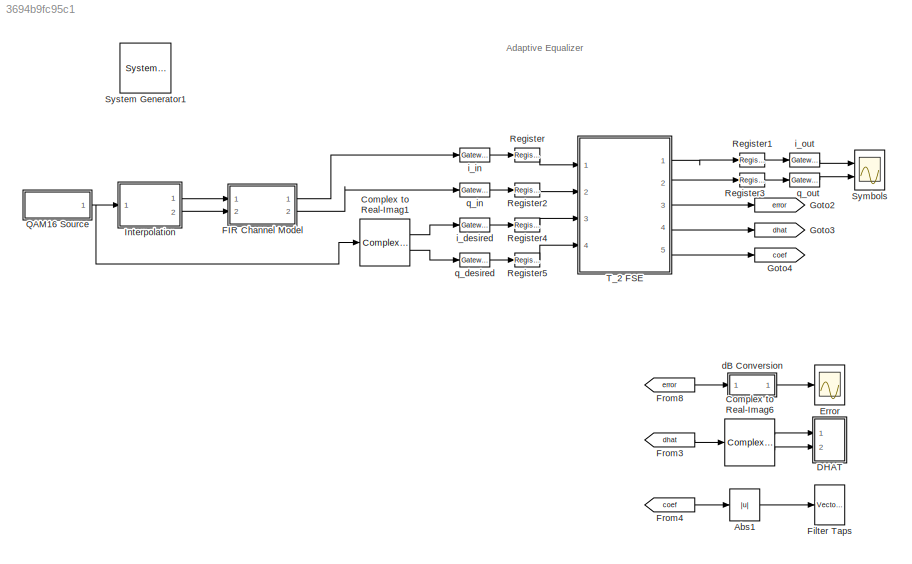
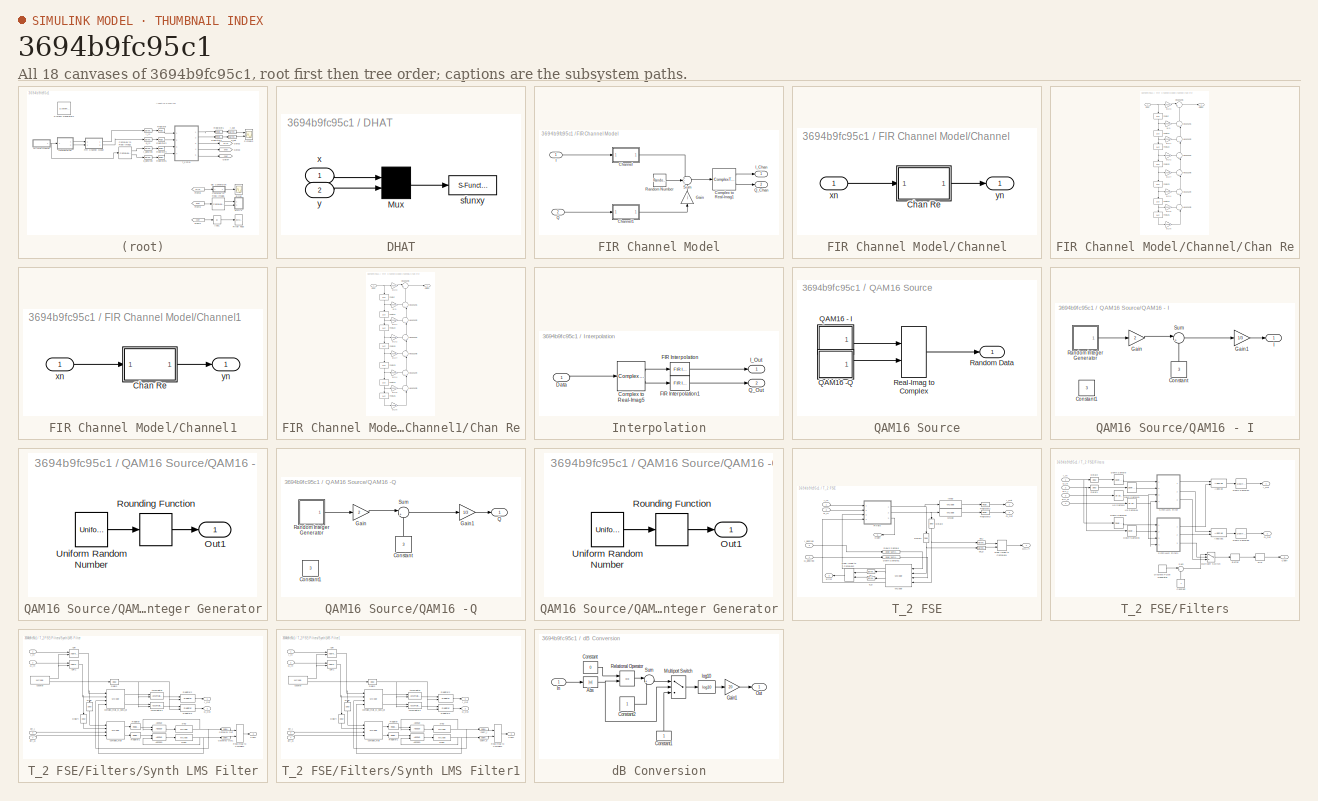
[diagram: thumbnail index - all 18 canvases of the model, root first then tree order]
MODEL slx_3694b9fc95c1
KIND model
BLOCK [Reference]  System Generator1  REF=xbsIndex_r4/ System Generator
  AttributesFormatString = System\nGenerator
  Impl_file = ISE Defaults
  Ports = []
  SourceBlock = xbsIndex_r4/ System Generator
  SourceType = Xilinx System Generator Block
  Synth_file = XST Defaults
  Tag = genX
  UserDataPersistent = on
  block_type = sysgen
  block_version = 9.2.01
  clock_wrapper = Clock Enables
  core_generation = According to Block Masks
  dbl_ovrd = According to Block Masks
  dcm_input_clock_period = 100
  deprecated_control = off
  directory = <path>
  eval_field = 0
  has_advanced_control = 0
  incr_netlist = off
  infoedit = System Generator
  package = csg324
  part = xc7a100t
  proj_type = Project Navigator
  run_coregen = off
  sg_icon_stat = 51,50,0,0,token,white,0,58c5b5770fe5f7c311f53dbc6e73f0f6,right,,[ ],[ ]
  sg_mask_display = fprintf('','COMMENT: begin icon graphics');\npatch([0 51 51 0 0 ],[0 0 50 50 0 ],[1 1 1 ]);\npatch([1.6375 16.81 27.31 37.81 48.31 27.31 12.1375 1.6375 ],[36.655 36.655 47.155 36.655 47.155 47.155 47.155 36.655 ],[0.933333 0.203922 0.141176 ]);\npatch([12.1375 27.31 16.81 1.6375 12.1375 ],[26.155 26.155 36.655 36.655 26.155 ],[0.698039 0.0313725 0.219608 ]);\npatch([1.6375 16.81 27.31 12.1375 1.6375 ]...<+327ch>
  sggui_pos = 326,241,464,400
  simulink_period = 1
  speed = -1
  synthesis_tool = Vivado
  sysclk_period = 10
  testbench = on
  trim_vbits = Everywhere in SubSystem
  xilinxfamily = artix7
BLOCK [Abs] Abs1
BLOCK [ComplexToRealImag] Complex to Real-Imag1
  Ports = [1, 2]
BLOCK [ComplexToRealImag] Complex to Real-Imag6
  Ports = [1, 2]
BLOCK [SubSystem] DHAT
  CopyFcn = xlsfunxy([],[],[],'CopyBlock')
  DeleteFcn = xlsfunxy([],[],[],'DeleteBlock')
  FunctionWithSeparateData = off
  LoadFcn = xlsfunxy([],[],[],'LoadBlock')
  MaskHideContents = off
  MinAlgLoopOccurrences = off
  NameChangeFcn = xlsfunxy([],[],[],'NameChange')
  Opaque = off
  Ports = [2]
  PropExecContextOutsideSubsystem = off
  RTWSystemCode = Auto
  RequestExecContextInheritance = off
  StartFcn = xlsfunxy([],[],[],'Start')
  StopFcn = xlsfunxy([],[],[],'Stop')
BLOCK [Mux] DHAT/Mux
  Inputs = 2
  Ports = [2, 1]
BLOCK [S-Function] DHAT/sfunxy
  EnableBusSupport = off
  FunctionName = xlsfunxy
  Parameters = [xmin xmax ymin ymax],refresh,style,st
  Ports = [1]
BLOCK [Inport] DHAT/x
  IconDisplay = Port number
BLOCK [Inport] DHAT/y
  IconDisplay = Port number
  Port = 2
BLOCK [Scope] Error
  DataFormat = StructureWithTime
  Floating = off
  NumInputPorts = 1
  Ports = [1]
  SampleTime = 0
  ShowLegends = off
  TimeRange = 500
  YMax = -16.5
  YMin = -24.5
BLOCK [SubSystem] FIR Channel Model
  FunctionWithSeparateData = off
  MaskHideContents = off
  MinAlgLoopOccurrences = off
  Opaque = off
  Ports = [2, 2]
  PropExecContextOutsideSubsystem = off
  RTWSystemCode = Auto
  RequestExecContextInheritance = off
BLOCK [SubSystem] FIR Channel Model/Channel
  FunctionWithSeparateData = off
  MaskHideContents = off
  MinAlgLoopOccurrences = off
  Opaque = off
  Ports = [1, 1]
  PropExecContextOutsideSubsystem = off
  RTWSystemCode = Auto
  RequestExecContextInheritance = off
BLOCK [SubSystem] FIR Channel Model/Channel/Chan Re
  FunctionWithSeparateData = off
  MaskHideContents = off
  MinAlgLoopOccurrences = off
  Opaque = off
  Ports = [1, 1]
  PropExecContextOutsideSubsystem = off
  RTWSystemCode = Auto
  RequestExecContextInheritance = off
BLOCK [UnitDelay] FIR Channel Model/Channel/Chan Re/FootLZ
BLOCK [UnitDelay] FIR Channel Model/Channel/Chan Re/FootLZ1
  SampleTime = -1
BLOCK [UnitDelay] FIR Channel Model/Channel/Chan Re/FootLZ2
  SampleTime = -1
BLOCK [UnitDelay] FIR Channel Model/Channel/Chan Re/FootLZ3
BLOCK [UnitDelay] FIR Channel Model/Channel/Chan Re/FootLZ4
  SampleTime = -1
BLOCK [UnitDelay] FIR Channel Model/Channel/Chan Re/FootLZ5
  SampleTime = -1
BLOCK [UnitDelay] FIR Channel Model/Channel/Chan Re/FootLZ6
  SampleTime = -1
BLOCK [Sum] FIR Channel Model/Channel/Chan Re/HeadSum1
  IconShape = round
  Inputs = ++|
  Ports = [2, 1]
BLOCK [Sum] FIR Channel Model/Channel/Chan Re/HeadSum2
  IconShape = round
  Inputs = ++|
  Ports = [2, 1]
BLOCK [Sum] FIR Channel Model/Channel/Chan Re/HeadSum3
  IconShape = round
  Inputs = |++
  Ports = [2, 1]
BLOCK [Sum] FIR Channel Model/Channel/Chan Re/HeadSum4
  IconShape = round
  Inputs = ++|
  Ports = [2, 1]
BLOCK [Sum] FIR Channel Model/Channel/Chan Re/HeadSum5
  IconShape = round
  Inputs = ++|
  Ports = [2, 1]
BLOCK [Sum] FIR Channel Model/Channel/Chan Re/HeadSum6
  IconShape = round
  Inputs = ++|
  Ports = [2, 1]
BLOCK [Sum] FIR Channel Model/Channel/Chan Re/HeadSum7
  IconShape = round
  Inputs = ++|
  Ports = [2, 1]
BLOCK [Inport] FIR Channel Model/Channel/Chan Re/Input
  IconDisplay = Port number
BLOCK [Outport] FIR Channel Model/Channel/Chan Re/Output
  IconDisplay = Port number
BLOCK [Gain] FIR Channel Model/Channel/Chan Re/b(2)
  Gain = chan(2)
BLOCK [Gain] FIR Channel Model/Channel/Chan Re/b(2)1
  Gain = chan(3)
BLOCK [Gain] FIR Channel Model/Channel/Chan Re/b(2)2
  Gain = chan(4)
BLOCK [Gain] FIR Channel Model/Channel/Chan Re/b(2)3
  Gain = chan(1)
BLOCK [Gain] FIR Channel Model/Channel/Chan Re/b(2)4
  Gain = chan(6)
BLOCK [Gain] FIR Channel Model/Channel/Chan Re/b(2)5
  Gain = chan(7)
BLOCK [Gain] FIR Channel Model/Channel/Chan Re/b(2)6
  Gain = chan(8)
BLOCK [Gain] FIR Channel Model/Channel/Chan Re/b(2)7
  Gain = chan(5)
BLOCK [Inport] FIR Channel Model/Channel/xn
  IconDisplay = Port number
BLOCK [Outport] FIR Channel Model/Channel/yn
  IconDisplay = Port number
BLOCK [SubSystem] FIR Channel Model/Channel1
  FunctionWithSeparateData = off
  MaskHideContents = off
  MinAlgLoopOccurrences = off
  Opaque = off
  Ports = [1, 1]
  PropExecContextOutsideSubsystem = off
  RTWSystemCode = Auto
  RequestExecContextInheritance = off
BLOCK [SubSystem] FIR Channel Model/Channel1/Chan Re
  FunctionWithSeparateData = off
  MaskHideContents = off
  MinAlgLoopOccurrences = off
  Opaque = off
  Ports = [1, 1]
  PropExecContextOutsideSubsystem = off
  RTWSystemCode = Auto
  RequestExecContextInheritance = off
BLOCK [UnitDelay] FIR Channel Model/Channel1/Chan Re/FootLZ
BLOCK [UnitDelay] FIR Channel Model/Channel1/Chan Re/FootLZ1
  SampleTime = -1
BLOCK [UnitDelay] FIR Channel Model/Channel1/Chan Re/FootLZ2
  SampleTime = -1
BLOCK [UnitDelay] FIR Channel Model/Channel1/Chan Re/FootLZ3
BLOCK [UnitDelay] FIR Channel Model/Channel1/Chan Re/FootLZ4
  SampleTime = -1
BLOCK [UnitDelay] FIR Channel Model/Channel1/Chan Re/FootLZ5
  SampleTime = -1
BLOCK [UnitDelay] FIR Channel Model/Channel1/Chan Re/FootLZ6
  SampleTime = -1
BLOCK [Sum] FIR Channel Model/Channel1/Chan Re/HeadSum1
  IconShape = round
  Inputs = ++|
  Ports = [2, 1]
BLOCK [Sum] FIR Channel Model/Channel1/Chan Re/HeadSum2
  IconShape = round
  Inputs = ++|
  Ports = [2, 1]
BLOCK [Sum] FIR Channel Model/Channel1/Chan Re/HeadSum3
  IconShape = round
  Inputs = |++
  Ports = [2, 1]
BLOCK [Sum] FIR Channel Model/Channel1/Chan Re/HeadSum4
  IconShape = round
  Inputs = ++|
  Ports = [2, 1]
BLOCK [Sum] FIR Channel Model/Channel1/Chan Re/HeadSum5
  IconShape = round
  Inputs = ++|
  Ports = [2, 1]
BLOCK [Sum] FIR Channel Model/Channel1/Chan Re/HeadSum6
  IconShape = round
  Inputs = ++|
  Ports = [2, 1]
BLOCK [Sum] FIR Channel Model/Channel1/Chan Re/HeadSum7
  IconShape = round
  Inputs = ++|
  Ports = [2, 1]
BLOCK [Inport] FIR Channel Model/Channel1/Chan Re/Input
  IconDisplay = Port number
BLOCK [Outport] FIR Channel Model/Channel1/Chan Re/Output
  IconDisplay = Port number
BLOCK [Gain] FIR Channel Model/Channel1/Chan Re/b(2)
  Gain = chan(2)
BLOCK [Gain] FIR Channel Model/Channel1/Chan Re/b(2)1
  Gain = chan(3)
BLOCK [Gain] FIR Channel Model/Channel1/Chan Re/b(2)2
  Gain = chan(4)
BLOCK [Gain] FIR Channel Model/Channel1/Chan Re/b(2)3
  Gain = chan(1)
BLOCK [Gain] FIR Channel Model/Channel1/Chan Re/b(2)4
  Gain = chan(6)
BLOCK [Gain] FIR Channel Model/Channel1/Chan Re/b(2)5
  Gain = chan(7)
BLOCK [Gain] FIR Channel Model/Channel1/Chan Re/b(2)6
  Gain = chan(8)
BLOCK [Gain] FIR Channel Model/Channel1/Chan Re/b(2)7
  Gain = chan(5)
BLOCK [Inport] FIR Channel Model/Channel1/xn
  IconDisplay = Port number
BLOCK [Outport] FIR Channel Model/Channel1/yn
  IconDisplay = Port number
BLOCK [ComplexToRealImag] FIR Channel Model/Complex to Real-Imag1
  Ports = [1, 2]
BLOCK [Gain] FIR Channel Model/Gain
  Gain = j
BLOCK [Inport] FIR Channel Model/I
  IconDisplay = Port number
BLOCK [Outport] FIR Channel Model/I_Chan
  IconDisplay = Port number
BLOCK [Inport] FIR Channel Model/Q
  IconDisplay = Port number
  Port = 2
BLOCK [Outport] FIR Channel Model/Q_Chan
  IconDisplay = Port number
  Port = 2
BLOCK [RandomNumber] FIR Channel Model/Random Number
  SampleTime = 100000
  Variance = .01
BLOCK [Sum] FIR Channel Model/Sum
  IconShape = round
  Inputs = +++
  Ports = [3, 1]
BLOCK [Reference] Filter Taps  REF=dspsnks4/Vector
Scope
  AxisGrid = on
  AxisLegend = off
  AxisProperties = off
  AxisZoom = on
  DisplayProperties = off
  Domain = User-defined
  FigPos = [66 260 329 270]
  FrameNumber = on
  HorizSpan = 1
  InheritXIncr = on
  LineColors = [0 0 1]
  LineDisables = on
  LineMarkers = .
  LineProperties = off
  LineStyles = :
  Memory = off
  OpenScopeAtSimStart = on
  OpenScopeImmediately = off
  Ports = [1]
  ScopeProperties = on
  ShowPortLabels = off
  SourceBlock = dspsnks4/Vector\nScope
  SourceType = Vector Scope
  XAxisParamsVer = 6.9
  XIncr = 1
  XLabel = Samples
  XLimit = Auto
  XMax = 1
  XMin = 0
  XRange = [0...Fs/2]
  XStart = 0
  XUnits = Hertz
  YLabel = Filter Coefficients
  YMax = 1.03689353636578
  YMin = 0.00597900340780036
  YUnits = dB
BLOCK [From] From3
  GotoTag = dhat
BLOCK [From] From4
  GotoTag = coef
BLOCK [From] From8
  GotoTag = error
BLOCK [Goto] Goto2
  GotoTag = error
BLOCK [Goto] Goto3
  GotoTag = dhat
BLOCK [Goto] Goto4
  GotoTag = coef
BLOCK [SubSystem] Interpolation
  FunctionWithSeparateData = off
  MaskHideContents = off
  MinAlgLoopOccurrences = off
  Opaque = off
  Ports = [1, 2]
  PropExecContextOutsideSubsystem = off
  RTWSystemCode = Auto
  RequestExecContextInheritance = off
BLOCK [ComplexToRealImag] Interpolation/Complex to Real-Imag5
  Ports = [1, 2]
BLOCK [Inport] Interpolation/Data
  IconDisplay = Port number
BLOCK [Reference] Interpolation/FIR Interpolation  REF=dspmlti4/FIR
Interpolation
  FilterObject = Hm_firinterp
  FilterSource = Specify via dialog
  InputProcessing = Elements as channels (sample based)
  L = 4
  LockScale = off
  Ports = [1, 1]
  SourceBlock = dspmlti4/FIR\nInterpolation
  SourceType = FIR Interpolation
  UserDataPersistent = on
  accumDataTypeStr = Inherit: Inherit via internal rule
  accumFracLength = 30
  accumLastDataTypeStr = Inherit: Inherit via internal rule
  accumMode = Inherit via internal rule
  accumWordLength = 32
  additionalParams = off
  allowOverrides = on
  firstCoeffDataTypeStr = Inherit: Same word length as input
  firstCoeffFracLength = 15
  firstCoeffLastDataTypeStr = Inherit: Same word length as input
  firstCoeffMax = []
  firstCoeffMin = []
  firstCoeffMode = Same word length as input
  firstCoeffWordLength = 16
  framing = Maintain input frame size
  h = sinc(-3:.25:3);
  outputBufInitCond = 0
  outputDataTypeStr = Inherit: Same as accumulator
  outputFracLength = 15
  outputLastDataTypeStr = Inherit: Same as accumulator
  outputMax = []
  outputMin = []
  outputMode = Same as accumulator
  outputWordLength = 16
  overflowMode = off
  prodOutputDataTypeStr = Inherit: Inherit via internal rule
  prodOutputFracLength = 30
  prodOutputLastDataTypeStr = Inherit: Inherit via internal rule
  prodOutputMode = Inherit via internal rule
  prodOutputWordLength = 32
  roundingMode = Floor
BLOCK [Reference] Interpolation/FIR Interpolation1  REF=dspmlti4/FIR
Interpolation
  FilterObject = Hm_firinterp
  FilterSource = Specify via dialog
  InputProcessing = Elements as channels (sample based)
  L = 4
  LockScale = off
  Ports = [1, 1]
  SourceBlock = dspmlti4/FIR\nInterpolation
  SourceType = FIR Interpolation
  UserDataPersistent = on
  accumDataTypeStr = Inherit: Inherit via internal rule
  accumFracLength = 30
  accumLastDataTypeStr = Inherit: Inherit via internal rule
  accumMode = Inherit via internal rule
  accumWordLength = 32
  additionalParams = off
  allowOverrides = on
  firstCoeffDataTypeStr = Inherit: Same word length as input
  firstCoeffFracLength = 15
  firstCoeffLastDataTypeStr = Inherit: Same word length as input
  firstCoeffMax = []
  firstCoeffMin = []
  firstCoeffMode = Same word length as input
  firstCoeffWordLength = 16
  framing = Maintain input frame size
  h = sinc(-3:.25:3);
  outputBufInitCond = 0
  outputDataTypeStr = Inherit: Same as accumulator
  outputFracLength = 15
  outputLastDataTypeStr = Inherit: Same as accumulator
  outputMax = []
  outputMin = []
  outputMode = Same as accumulator
  outputWordLength = 16
  overflowMode = off
  prodOutputDataTypeStr = Inherit: Inherit via internal rule
  prodOutputFracLength = 30
  prodOutputLastDataTypeStr = Inherit: Inherit via internal rule
  prodOutputMode = Inherit via internal rule
  prodOutputWordLength = 32
  roundingMode = Floor
BLOCK [Outport] Interpolation/I_Out
  IconDisplay = Port number
BLOCK [Outport] Interpolation/Q_Out
  IconDisplay = Port number
  Port = 2
BLOCK [SubSystem] QAM16 Source
  FunctionWithSeparateData = off
  MaskHideContents = off
  MinAlgLoopOccurrences = off
  Opaque = off
  Ports = [0, 1]
  PropExecContextOutsideSubsystem = off
  RTWSystemCode = Auto
  RequestExecContextInheritance = off
BLOCK [Outport] QAM16 Source/ Random Data
  IconDisplay = Port number
BLOCK [SubSystem] QAM16 Source/QAM16 - I
  FunctionWithSeparateData = off
  MaskHideContents = off
  MinAlgLoopOccurrences = off
  Opaque = off
  Ports = [0, 1]
  PropExecContextOutsideSubsystem = off
  RTWSystemCode = Auto
  RequestExecContextInheritance = off
BLOCK [Constant] QAM16 Source/QAM16 - I/Constant
  Value = 3
BLOCK [Constant] QAM16 Source/QAM16 - I/Constant1
  OutDataTypeStr = double
  Value = 3
BLOCK [Gain] QAM16 Source/QAM16 - I/Gain
  Gain = 2
BLOCK [Gain] QAM16 Source/QAM16 - I/Gain1
  Gain = 1/3
BLOCK [Outport] QAM16 Source/QAM16 - I/I
  IconDisplay = Port number
BLOCK [SubSystem] QAM16 Source/QAM16 - I/Random Integer Generator
  FunctionWithSeparateData = off
  MaskHideContents = off
  MinAlgLoopOccurrences = off
  Opaque = off
  Ports = [0, 1]
  PropExecContextOutsideSubsystem = off
  RTWSystemCode = Auto
  RequestExecContextInheritance = off
BLOCK [Outport] QAM16 Source/QAM16 - I/Random Integer Generator/Out1
  IconDisplay = Port number
BLOCK [Rounding] QAM16 Source/QAM16 - I/Random Integer Generator/Rounding Function
  Operator = round
BLOCK [UniformRandomNumber] QAM16 Source/QAM16 - I/Random Integer Generator/Uniform Random Number
  Maximum = M-1 + 0.49
  Minimum = -0.49
  SampleTime = Ts
  Seed = seed
BLOCK [Sum] QAM16 Source/QAM16 - I/Sum
  IconShape = round
  Inputs = |+-
  Ports = [2, 1]
BLOCK [SubSystem] QAM16 Source/QAM16 -Q
  FunctionWithSeparateData = off
  MaskHideContents = off
  MinAlgLoopOccurrences = off
  Opaque = off
  Ports = [0, 1]
  PropExecContextOutsideSubsystem = off
  RTWSystemCode = Auto
  RequestExecContextInheritance = off
BLOCK [Constant] QAM16 Source/QAM16 -Q/Constant
  Value = 3
BLOCK [Constant] QAM16 Source/QAM16 -Q/Constant1
  OutDataTypeStr = double
  Value = 3
BLOCK [Gain] QAM16 Source/QAM16 -Q/Gain
  Gain = 2
BLOCK [Gain] QAM16 Source/QAM16 -Q/Gain1
  Gain = 1/3
BLOCK [Outport] QAM16 Source/QAM16 -Q/Q
  IconDisplay = Port number
BLOCK [SubSystem] QAM16 Source/QAM16 -Q/Random Integer Generator
  FunctionWithSeparateData = off
  MaskHideContents = off
  MinAlgLoopOccurrences = off
  Opaque = off
  Ports = [0, 1]
  PropExecContextOutsideSubsystem = off
  RTWSystemCode = Auto
  RequestExecContextInheritance = off
BLOCK [Outport] QAM16 Source/QAM16 -Q/Random Integer Generator/Out1
  IconDisplay = Port number
BLOCK [Rounding] QAM16 Source/QAM16 -Q/Random Integer Generator/Rounding Function
  Operator = round
BLOCK [UniformRandomNumber] QAM16 Source/QAM16 -Q/Random Integer Generator/Uniform Random Number
  Maximum = M-1 + 0.49
  Minimum = -0.49
  SampleTime = Ts
  Seed = seed
BLOCK [Sum] QAM16 Source/QAM16 -Q/Sum
  IconShape = round
  Inputs = |+-
  Ports = [2, 1]
BLOCK [RealImagToComplex] QAM16 Source/Real-Imag to Complex
  Ports = [2, 1]
BLOCK [Reference] Register  REF=xbsIndex_r4/Register
  Ports = [1, 1]
  SourceBlock = xbsIndex_r4/Register
  SourceType = Xilinx Register Block
  block_type = register
  block_version = VER_STRING_GOES_HERE
  dbl_ovrd = off
  en = off
  has_advanced_control = 0
  init = 0
  rst = off
  sg_icon_stat = 25,14,1,1,white,blue,0,711e8842,right,,[ ],[ ]
  sg_mask_display = fprintf('','COMMENT: begin icon graphics');\npatch([0 25 25 0 0 ],[0 0 14 14 0 ],[0.77 0.82 0.91 ]);\nplot([0 25 25 0 0 ],[0 0 14 14 0 ]);\npatch([7.55 10.44 12.44 14.44 16.44 12.44 9.55 7.55 ],[9.22 9.22 11.22 9.22 11.22 11.22 11.22 9.22 ],[1 1 1 ]);\npatch([9.55 12.44 10.44 7.55 9.55 ],[7.22 7.22 9.22 9.22 7.22 ],[0.931 0.946 0.973 ]);\npatch([7.55 10.44 12.44 9.55 7.55 ],[5.22 5.22 7.22 7.22 5.22 ],...<+317ch>  <repeated x6 — deduplicated; at blocks: Register, Register1, Register2, Register3, Register4, Register5>
  sggui_pos = -1,-1,-1,-1
  xl_area = [6 12 0 0 0 0 0]
  xl_use_area = off
BLOCK [Reference] Register1  REF=xbsIndex_r4/Register
  Ports = [1, 1]
  SourceBlock = xbsIndex_r4/Register
  SourceType = Xilinx Register Block
  block_type = register
  block_version = VER_STRING_GOES_HERE
  dbl_ovrd = off
  en = off
  has_advanced_control = 0
  init = 0
  rst = off
  sg_icon_stat = 25,14,1,1,white,blue,0,711e8842,right,,[ ],[ ]
  sggui_pos = -1,-1,-1,-1
  xl_area = [5 10 0 0 0 0 0]
  xl_use_area = off
BLOCK [Reference] Register2  REF=xbsIndex_r4/Register
  Ports = [1, 1]
  SourceBlock = xbsIndex_r4/Register
  SourceType = Xilinx Register Block
  block_type = register
  block_version = VER_STRING_GOES_HERE
  dbl_ovrd = off
  en = off
  has_advanced_control = 0
  init = 0
  rst = off
  sg_icon_stat = 25,14,1,1,white,blue,0,711e8842,right,,[ ],[ ]
  sggui_pos = -1,-1,-1,-1
  xl_area = [6 12 0 0 0 0 0]
  xl_use_area = off
BLOCK [Reference] Register3  REF=xbsIndex_r4/Register
  Ports = [1, 1]
  SourceBlock = xbsIndex_r4/Register
  SourceType = Xilinx Register Block
  block_type = register
  block_version = VER_STRING_GOES_HERE
  dbl_ovrd = off
  en = off
  has_advanced_control = 0
  init = 0
  rst = off
  sg_icon_stat = 25,14,1,1,white,blue,0,711e8842,right,,[ ],[ ]
  sggui_pos = -1,-1,-1,-1
  xl_area = [5 10 0 0 0 0 0]
  xl_use_area = off
BLOCK [Reference] Register4  REF=xbsIndex_r4/Register
  Ports = [1, 1]
  SourceBlock = xbsIndex_r4/Register
  SourceType = Xilinx Register Block
  block_type = register
  block_version = VER_STRING_GOES_HERE
  dbl_ovrd = off
  en = off
  has_advanced_control = 0
  init = 0
  rst = off
  sg_icon_stat = 25,14,1,1,white,blue,0,711e8842,right,,[ ],[ ]
  sggui_pos = -1,-1,-1,-1
  xl_area = [6 12 0 0 0 0 0]
  xl_use_area = off
BLOCK [Reference] Register5  REF=xbsIndex_r4/Register
  Ports = [1, 1]
  SourceBlock = xbsIndex_r4/Register
  SourceType = Xilinx Register Block
  block_type = register
  block_version = VER_STRING_GOES_HERE
  dbl_ovrd = off
  en = off
  has_advanced_control = 0
  init = 0
  rst = off
  sg_icon_stat = 25,14,1,1,white,blue,0,711e8842,right,,[ ],[ ]
  sggui_pos = -1,-1,-1,-1
  xl_area = [6 12 0 0 0 0 0]
  xl_use_area = off
BLOCK [Scope] Symbols
  DataFormat = StructureWithTime
  Floating = off
  NumInputPorts = 2
  Ports = [2]
  SampleTime = 0
  SaveName = ScopeData1
  ShowLegends = off
  YMax = 5~5
  YMin = -5~-5
  ZoomMode = yonly
BLOCK [SubSystem] T_2 FSE
  FunctionWithSeparateData = off
  MaskHideContents = off
  MinAlgLoopOccurrences = off
  Opaque = off
  Ports = [4, 5]
  PropExecContextOutsideSubsystem = off
  RTWSystemCode = Auto
  RequestExecContextInheritance = off
BLOCK [Outport] T_2 FSE/Coeff
  IconDisplay = Port number
  Port = 5
BLOCK [Outport] T_2 FSE/DHAT
  IconDisplay = Port number
  Port = 4
BLOCK [Reference] T_2 FSE/Delay1  REF=xbsIndex_r4/Delay
  Ports = [1, 1]
  SourceBlock = xbsIndex_r4/Delay
  SourceType = Xilinx Delay Block
  block_type = delay
  block_version = VER_STRING_GOES_HERE
  dbl_ovrd = off
  en = off
  has_advanced_control = 0
  infoedit = Delay line having  configurable length.<P><P>Hardware notes: A delay line is a chain, each link of which is an SRL16 followed by a flip-flop. If register retiming is enabled, the delay line is a chain of flip-flops.  <repeated x10 — deduplicated; at blocks: Delay1, Delay2, Delay, Delay4>
  infoeditControl = Selection of Reset will increase slice count due to use of real FFs and instead of SRLs
  latency = 2
  reg_retiming = on
  rst = off
  sg_icon_stat = 20,35,1,1,white,blue,0,3622e7b1,down,,[ ],[ ]
  sg_mask_display = fprintf('','COMMENT: begin icon graphics');\npatch([0 20 20 0 0 ],[0 0 35 35 0 ],[0.77 0.82 0.91 ]);\nplot([0 20 20 0 0 ],[0 0 35 35 0 ]);\npatch([5.55 8.44 10.44 12.44 14.44 10.44 7.55 5.55 ],[19.22 19.22 21.22 19.22 21.22 21.22 21.22 19.22 ],[1 1 1 ]);\npatch([7.55 10.44 8.44 5.55 7.55 ],[17.22 17.22 19.22 19.22 17.22 ],[0.931 0.946 0.973 ]);\npatch([5.55 8.44 10.44 7.55 5.55 ],[15.22 15.22 17.22 17....<+334ch>
  sggui_pos = -1,-1,-1,-1
  xl_area = [9 18 0 18 0 0 0]
  xl_use_area = off
BLOCK [Reference] T_2 FSE/Delay2  REF=xbsIndex_r4/Delay
  Ports = [1, 1]
  SourceBlock = xbsIndex_r4/Delay
  SourceType = Xilinx Delay Block
  block_type = delay
  block_version = VER_STRING_GOES_HERE
  dbl_ovrd = off
  en = off
  has_advanced_control = 0
  infoeditControl = Selection of Reset will increase slice count due to use of real FFs and instead of SRLs
  latency = 2
  reg_retiming = on
  rst = off
  sg_icon_stat = 20,35,1,1,white,blue,0,3622e7b1,down,,[ ],[ ]
  sg_mask_display = fprintf('','COMMENT: begin icon graphics');\npatch([0 20 20 0 0 ],[0 0 35 35 0 ],[0.77 0.82 0.91 ]);\nplot([0 20 20 0 0 ],[0 0 35 35 0 ]);\npatch([5.55 8.44 10.44 12.44 14.44 10.44 7.55 5.55 ],[19.22 19.22 21.22 19.22 21.22 21.22 21.22 19.22 ],[1 1 1 ]);\npatch([7.55 10.44 8.44 5.55 7.55 ],[17.22 17.22 19.22 19.22 17.22 ],[0.931 0.946 0.973 ]);\npatch([5.55 8.44 10.44 7.55 5.55 ],[15.22 15.22 17.22 17....<+334ch>
  sggui_pos = -1,-1,-1,-1
  xl_area = [9 18 0 18 0 0 0]
  xl_use_area = off
BLOCK [Reference] T_2 FSE/Down Sample  REF=xbsIndex_r4/Down Sample
  Ports = [1, 1]
  SourceBlock = xbsIndex_r4/Down Sample
  SourceType = Xilinx Down Sampler Block
  block_type = dsamp
  dbl_ovrd = off
  en = off
  has_advanced_control = 0
  infoedit = Hardware notes: Sample and Latency controls determine the hardware implementation.  The cost in hardware of different implementations varies considerably; press Help for details.
  latency = 11
  rst = off
  sample_phase = Last Value of Frame  (most efficient)
  sample_ratio = 2
  sg_icon_stat = 65,12,1,1,white,blue,0,db371d3c,right,,[ ],[ ]
  sg_mask_display = fprintf('','COMMENT: begin icon graphics');\npatch([0 65 65 0 0 ],[0 0 12 12 0 ],[0.77 0.82 0.91 ]);\nplot([0 65 65 0 0 ],[0 0 12 12 0 ]);\npatch([29.775 31.22 32.22 33.22 34.22 32.22 30.775 29.775 ],[7.11 7.11 8.11 7.11 8.11 8.11 8.11 7.11 ],[1 1 1 ]);\npatch([30.775 32.22 31.22 29.775 30.775 ],[6.11 6.11 7.11 7.11 6.11 ],[0.931 0.946 0.973 ]);\npatch([29.775 31.22 32.22 30.775 29.775 ],[5.11 5.11 6.1...<+338ch>
  sggui_pos = -412,276,364,369
  xl_area = [0,0,0,0,0,0,0]
  xl_use_area = off
BLOCK [Reference] T_2 FSE/Down Sample1  REF=xbsIndex_r4/Down Sample
  Ports = [1, 1]
  SourceBlock = xbsIndex_r4/Down Sample
  SourceType = Xilinx Down Sampler Block
  block_type = dsamp
  dbl_ovrd = off
  en = off
  has_advanced_control = 0
  infoedit = Hardware notes: Sample and Latency controls determine the hardware implementation.  The cost in hardware of different implementations varies considerably; press Help for details.
  latency = 11
  rst = off
  sample_phase = Last Value of Frame  (most efficient)
  sample_ratio = 2
  sg_icon_stat = 65,12,1,1,white,blue,0,db371d3c,right,,[ ],[ ]
  sg_mask_display = fprintf('','COMMENT: begin icon graphics');\npatch([0 65 65 0 0 ],[0 0 12 12 0 ],[0.77 0.82 0.91 ]);\nplot([0 65 65 0 0 ],[0 0 12 12 0 ]);\npatch([29.775 31.22 32.22 33.22 34.22 32.22 30.775 29.775 ],[7.11 7.11 8.11 7.11 8.11 8.11 8.11 7.11 ],[1 1 1 ]);\npatch([30.775 32.22 31.22 29.775 30.775 ],[6.11 6.11 7.11 7.11 6.11 ],[0.931 0.946 0.973 ]);\npatch([29.775 31.22 32.22 30.775 29.775 ],[5.11 5.11 6.1...<+338ch>
  sggui_pos = -1,-1,-1,-1
  xl_area = [0,0,0,0,0,0,0]
  xl_use_area = off
BLOCK [Outport] T_2 FSE/Error
  IconDisplay = Port number
  Port = 3
BLOCK [SubSystem] T_2 FSE/Filters
  FunctionWithSeparateData = off
  MaskHideContents = off
  MinAlgLoopOccurrences = off
  Opaque = off
  Ports = [4, 3]
  PropExecContextOutsideSubsystem = off
  RTWSystemCode = Auto
  RequestExecContextInheritance = off
BLOCK [Reference] T_2 FSE/Filters/AddSub  REF=xbsIndex_r4/AddSub
  Ports = [2, 1]
  SourceBlock = xbsIndex_r4/AddSub
  SourceType = Xilinx Adder/Subtracter Block
  arith_type = Signed  (2's comp)
  bin_pt = 10
  block_type = addsub
  block_version = VER_STRING_GOES_HERE
  dbl_ovrd = off
  en = off
  has_advanced_control = 0
  hw_selection = Fabric
  latency = 0
  mode = Addition
  n_bits = 18
  overflow = Wrap
  pipelined = off
  precision = User Defined
  quantization = Truncate
  sg_icon_stat = 60,31,2,1,white,blue,0,caf28467,right,,[ ],[ ]
  sg_mask_display = fprintf('','COMMENT: begin icon graphics');\npatch([0 60 60 0 0 ],[0 0 31 31 0 ],[0.77 0.82 0.91 ]);\nplot([0 60 60 0 0 ],[0 0 31 31 0 ]);\npatch([21.1 26.88 30.88 34.88 38.88 30.88 25.1 21.1 ],[19.44 19.44 23.44 19.44 23.44 23.44 23.44 19.44 ],[1 1 1 ]);\npatch([25.1 30.88 26.88 21.1 25.1 ],[15.44 15.44 19.44 19.44 15.44 ],[0.931 0.946 0.973 ]);\npatch([21.1 26.88 30.88 25.1 21.1 ],[11.44 11.44 15.44 ...<+409ch>
  sggui_pos = 1212,20,356,331
  use_behavioral_HDL = on
  use_carryin = off
  use_carryout = off
  use_rpm = on
  xl_area = [0,0,0,0,0,0,0]
  xl_use_area = off
BLOCK [Reference] T_2 FSE/Filters/AddSub1  REF=xbsIndex_r4/AddSub
  Ports = [2, 1]
  SourceBlock = xbsIndex_r4/AddSub
  SourceType = Xilinx Adder/Subtracter Block
  arith_type = Signed  (2's comp)
  bin_pt = 10
  block_type = addsub
  block_version = VER_STRING_GOES_HERE
  dbl_ovrd = off
  en = off
  has_advanced_control = 0
  hw_selection = Fabric
  latency = 0
  mode = Addition
  n_bits = 18
  overflow = Wrap
  pipelined = off
  precision = User Defined
  quantization = Truncate
  sg_icon_stat = 60,31,2,1,white,blue,0,caf28467,right,,[ ],[ ]
  sg_mask_display = fprintf('','COMMENT: begin icon graphics');\npatch([0 60 60 0 0 ],[0 0 31 31 0 ],[0.77 0.82 0.91 ]);\nplot([0 60 60 0 0 ],[0 0 31 31 0 ]);\npatch([21.1 26.88 30.88 34.88 38.88 30.88 25.1 21.1 ],[19.44 19.44 23.44 19.44 23.44 23.44 23.44 19.44 ],[1 1 1 ]);\npatch([25.1 30.88 26.88 21.1 25.1 ],[15.44 15.44 19.44 19.44 15.44 ],[0.931 0.946 0.973 ]);\npatch([21.1 26.88 30.88 25.1 21.1 ],[11.44 11.44 15.44 ...<+409ch>
  sggui_pos = 1212,20,356,331
  use_behavioral_HDL = on
  use_carryin = off
  use_carryout = off
  use_rpm = on
  xl_area = [0,0,0,0,0,0,0]
  xl_use_area = off
BLOCK [Buffer] T_2 FSE/Filters/Buffer
  N = 8
  TreatMby1Signals = One channel
BLOCK [Outport] T_2 FSE/Filters/Coeff
  IconDisplay = Port number
  Port = 3
BLOCK [Constant] T_2 FSE/Filters/Constant
BLOCK [Reference] T_2 FSE/Filters/Delay1  REF=xbsIndex_r4/Delay
  Ports = [1, 1]
  SourceBlock = xbsIndex_r4/Delay
  SourceType = Xilinx Delay Block
  block_type = delay
  block_version = VER_STRING_GOES_HERE
  dbl_ovrd = off
  en = off
  has_advanced_control = 0
  infoeditControl = Selection of Reset will increase slice count due to use of real FFs and instead of SRLs
  latency = 1
  reg_retiming = on
  rst = off
  sg_icon_stat = 30,20,1,1,white,blue,0,711e8842,right,,[ ],[ ]
  sg_mask_display = fprintf('','COMMENT: begin icon graphics');\npatch([0 30 30 0 0 ],[0 0 20 20 0 ],[0.77 0.82 0.91 ]);\nplot([0 30 30 0 0 ],[0 0 20 20 0 ]);\npatch([10.55 13.44 15.44 17.44 19.44 15.44 12.55 10.55 ],[12.22 12.22 14.22 12.22 14.22 14.22 14.22 12.22 ],[1 1 1 ]);\npatch([12.55 15.44 13.44 10.55 12.55 ],[10.22 10.22 12.22 12.22 10.22 ],[0.931 0.946 0.973 ]);\npatch([10.55 13.44 15.44 12.55 10.55 ],[8.22 8.22...<+340ch>
  sggui_pos = -1,-1,-1,-1
  xl_area = [6 12 0 0 0 0 0]
  xl_use_area = off
BLOCK [Reference] T_2 FSE/Filters/Delay2  REF=xbsIndex_r4/Delay
  Ports = [1, 1]
  SourceBlock = xbsIndex_r4/Delay
  SourceType = Xilinx Delay Block
  block_type = delay
  block_version = VER_STRING_GOES_HERE
  dbl_ovrd = off
  en = off
  has_advanced_control = 0
  infoeditControl = Selection of Reset will increase slice count due to use of real FFs and instead of SRLs
  latency = 1
  reg_retiming = on
  rst = off
  sg_icon_stat = 30,20,1,1,white,blue,0,711e8842,right,,[ ],[ ]
  sg_mask_display = fprintf('','COMMENT: begin icon graphics');\npatch([0 30 30 0 0 ],[0 0 20 20 0 ],[0.77 0.82 0.91 ]);\nplot([0 30 30 0 0 ],[0 0 20 20 0 ]);\npatch([10.55 13.44 15.44 17.44 19.44 15.44 12.55 10.55 ],[12.22 12.22 14.22 12.22 14.22 14.22 14.22 12.22 ],[1 1 1 ]);\npatch([12.55 15.44 13.44 10.55 12.55 ],[10.22 10.22 12.22 12.22 10.22 ],[0.931 0.946 0.973 ]);\npatch([10.55 13.44 15.44 12.55 10.55 ],[8.22 8.22...<+340ch>
  sggui_pos = -1,-1,-1,-1
  xl_area = [6 12 0 0 0 0 0]
  xl_use_area = off
BLOCK [DiscretePulseGenerator] T_2 FSE/Filters/Discrete Pulse Generator
  Ports = [0, 1]
  SampleTime = .5
BLOCK [Reference] T_2 FSE/Filters/Down Sample  REF=xbsIndex_r4/Down Sample
  Ports = [1, 1]
  SourceBlock = xbsIndex_r4/Down Sample
  SourceType = Xilinx Down Sampler Block
  block_type = dsamp
  block_version = VER_STRING_GOES_HERE
  dbl_ovrd = off
  en = off
  has_advanced_control = 0
  infoedit = Hardware notes: Sample and Latency controls determine the hardware implementation.  The cost in hardware of different implementations varies considerably; press Help for details.
  latency = 1
  rst = off
  sample_phase = Last Value of Frame  (most efficient)
  sample_ratio = 2
  sg_icon_stat = 35,38,1,1,white,blue,0,711e8842,right,,[ ],[ ]
  sg_mask_display = fprintf('','COMMENT: begin icon graphics');\npatch([0 35 35 0 0 ],[0 0 38 38 0 ],[0.77 0.82 0.91 ]);\nplot([0 35 35 0 0 ],[0 0 38 38 0 ]);\npatch([5.875 13.1 18.1 23.1 28.1 18.1 10.875 5.875 ],[24.55 24.55 29.55 24.55 29.55 29.55 29.55 24.55 ],[1 1 1 ]);\npatch([10.875 18.1 13.1 5.875 10.875 ],[19.55 19.55 24.55 24.55 19.55 ],[0.931 0.946 0.973 ]);\npatch([5.875 13.1 18.1 10.875 5.875 ],[14.55 14.55 19...<+339ch>
  sggui_pos = -1,-1,-1,-1
  xl_area = [6 12 0 0 0 0 0]
  xl_use_area = off
BLOCK [Reference] T_2 FSE/Filters/Down Sample1  REF=xbsIndex_r4/Down Sample
  Ports = [1, 1]
  SourceBlock = xbsIndex_r4/Down Sample
  SourceType = Xilinx Down Sampler Block
  block_type = dsamp
  block_version = VER_STRING_GOES_HERE
  dbl_ovrd = off
  en = off
  has_advanced_control = 0
  infoedit = Hardware notes: Sample and Latency controls determine the hardware implementation.  The cost in hardware of different implementations varies considerably; press Help for details.
  latency = 1
  rst = off
  sample_phase = Last Value of Frame  (most efficient)
  sample_ratio = 2
  sg_icon_stat = 35,38,1,1,white,blue,0,711e8842,right,,[ ],[ ]
  sg_mask_display = fprintf('','COMMENT: begin icon graphics');\npatch([0 35 35 0 0 ],[0 0 38 38 0 ],[0.77 0.82 0.91 ]);\nplot([0 35 35 0 0 ],[0 0 38 38 0 ]);\npatch([5.875 13.1 18.1 23.1 28.1 18.1 10.875 5.875 ],[24.55 24.55 29.55 24.55 29.55 29.55 29.55 24.55 ],[1 1 1 ]);\npatch([10.875 18.1 13.1 5.875 10.875 ],[19.55 19.55 24.55 24.55 19.55 ],[0.931 0.946 0.973 ]);\npatch([5.875 13.1 18.1 10.875 5.875 ],[14.55 14.55 19...<+339ch>
  sggui_pos = -1,-1,-1,-1
  xl_area = [6 12 0 0 0 0 0]
  xl_use_area = off
BLOCK [Reference] T_2 FSE/Filters/Down Sample2  REF=xbsIndex_r4/Down Sample
  Ports = [1, 1]
  SourceBlock = xbsIndex_r4/Down Sample
  SourceType = Xilinx Down Sampler Block
  block_type = dsamp
  block_version = VER_STRING_GOES_HERE
  dbl_ovrd = off
  en = off
  has_advanced_control = 0
  infoedit = Hardware notes: Sample and Latency controls determine the hardware implementation.  The cost in hardware of different implementations varies considerably; press Help for details.
  latency = 2
  rst = off
  sample_phase = Last Value of Frame  (most efficient)
  sample_ratio = 2
  sg_icon_stat = 35,42,1,1,white,blue,0,3622e7b1,right,,[ ],[ ]
  sg_mask_display = fprintf('','COMMENT: begin icon graphics');\npatch([0 35 35 0 0 ],[0 0 42 42 0 ],[0.77 0.82 0.91 ]);\nplot([0 35 35 0 0 ],[0 0 42 42 0 ]);\npatch([5.875 13.1 18.1 23.1 28.1 18.1 10.875 5.875 ],[26.55 26.55 31.55 26.55 31.55 31.55 31.55 26.55 ],[1 1 1 ]);\npatch([10.875 18.1 13.1 5.875 10.875 ],[21.55 21.55 26.55 26.55 21.55 ],[0.931 0.946 0.973 ]);\npatch([5.875 13.1 18.1 10.875 5.875 ],[16.55 16.55 21...<+343ch>
  sggui_pos = -1,-1,-1,-1
  xl_area = [6 12 0 12 0 0 0]
  xl_use_area = off
BLOCK [Reference] T_2 FSE/Filters/Down Sample3  REF=xbsIndex_r4/Down Sample
  Ports = [1, 1]
  SourceBlock = xbsIndex_r4/Down Sample
  SourceType = Xilinx Down Sampler Block
  block_type = dsamp
  block_version = VER_STRING_GOES_HERE
  dbl_ovrd = off
  en = off
  has_advanced_control = 0
  infoedit = Hardware notes: Sample and Latency controls determine the hardware implementation.  The cost in hardware of different implementations varies considerably; press Help for details.
  latency = 2
  rst = off
  sample_phase = Last Value of Frame  (most efficient)
  sample_ratio = 2
  sg_icon_stat = 35,40,1,1,white,blue,0,3622e7b1,right,,[ ],[ ]
  sg_mask_display = fprintf('','COMMENT: begin icon graphics');\npatch([0 35 35 0 0 ],[0 0 40 40 0 ],[0.77 0.82 0.91 ]);\nplot([0 35 35 0 0 ],[0 0 40 40 0 ]);\npatch([5.875 13.1 18.1 23.1 28.1 18.1 10.875 5.875 ],[25.55 25.55 30.55 25.55 30.55 30.55 30.55 25.55 ],[1 1 1 ]);\npatch([10.875 18.1 13.1 5.875 10.875 ],[20.55 20.55 25.55 25.55 20.55 ],[0.931 0.946 0.973 ]);\npatch([5.875 13.1 18.1 10.875 5.875 ],[15.55 15.55 20...<+343ch>
  sggui_pos = -1,-1,-1,-1
  xl_area = [6 12 0 12 0 0 0]
  xl_use_area = off
BLOCK [Reference] T_2 FSE/Filters/Down Sample4  REF=xbsIndex_r4/Down Sample
  Ports = [1, 1]
  SourceBlock = xbsIndex_r4/Down Sample
  SourceType = Xilinx Down Sampler Block
  block_type = dsamp
  block_version = VER_STRING_GOES_HERE
  dbl_ovrd = off
  en = off
  has_advanced_control = 0
  infoedit = Hardware notes: Sample and Latency controls determine the hardware implementation.  The cost in hardware of different implementations varies considerably; press Help for details.
  latency = 1
  rst = off
  sample_phase = Last Value of Frame  (most efficient)
  sample_ratio = 4
  sg_icon_stat = 40,38,1,1,white,blue,0,711e8842,right,,[ ],[ ]
  sg_mask_display = fprintf('','COMMENT: begin icon graphics');\npatch([0 40 40 0 0 ],[0 0 38 38 0 ],[0.77 0.82 0.91 ]);\nplot([0 40 40 0 0 ],[0 0 38 38 0 ]);\npatch([8.875 16.1 21.1 26.1 31.1 21.1 13.875 8.875 ],[24.55 24.55 29.55 24.55 29.55 29.55 29.55 24.55 ],[1 1 1 ]);\npatch([13.875 21.1 16.1 8.875 13.875 ],[19.55 19.55 24.55 24.55 19.55 ],[0.931 0.946 0.973 ]);\npatch([8.875 16.1 21.1 13.875 8.875 ],[14.55 14.55 19...<+339ch>
  sggui_pos = -1,-1,-1,-1
  xl_area = [9 18 0 0 0 0 0]
  xl_use_area = off
BLOCK [Reference] T_2 FSE/Filters/Down Sample5  REF=xbsIndex_r4/Down Sample
  Ports = [1, 1]
  SourceBlock = xbsIndex_r4/Down Sample
  SourceType = Xilinx Down Sampler Block
  block_type = dsamp
  block_version = VER_STRING_GOES_HERE
  dbl_ovrd = off
  en = off
  has_advanced_control = 0
  infoedit = Hardware notes: Sample and Latency controls determine the hardware implementation.  The cost in hardware of different implementations varies considerably; press Help for details.
  latency = 1
  rst = off
  sample_phase = Last Value of Frame  (most efficient)
  sample_ratio = 4
  sg_icon_stat = 40,38,1,1,white,blue,0,711e8842,right,,[ ],[ ]
  sg_mask_display = fprintf('','COMMENT: begin icon graphics');\npatch([0 40 40 0 0 ],[0 0 38 38 0 ],[0.77 0.82 0.91 ]);\nplot([0 40 40 0 0 ],[0 0 38 38 0 ]);\npatch([8.875 16.1 21.1 26.1 31.1 21.1 13.875 8.875 ],[24.55 24.55 29.55 24.55 29.55 29.55 29.55 24.55 ],[1 1 1 ]);\npatch([13.875 21.1 16.1 8.875 13.875 ],[19.55 19.55 24.55 24.55 19.55 ],[0.931 0.946 0.973 ]);\npatch([8.875 16.1 21.1 13.875 8.875 ],[14.55 14.55 19...<+339ch>
  sggui_pos = -1,-1,-1,-1
  xl_area = [9 18 0 0 0 0 0]
  xl_use_area = off
BLOCK [Inport] T_2 FSE/Filters/Err_I
  IconDisplay = Port number
  Port = 3
BLOCK [Inport] T_2 FSE/Filters/Err_Q
  IconDisplay = Port number
  Port = 4
BLOCK [DSPFlip] T_2 FSE/Filters/Flip
BLOCK [Inport] T_2 FSE/Filters/I_In
  IconDisplay = Port number
BLOCK [Outport] T_2 FSE/Filters/I_Out
  IconDisplay = Port number
BLOCK [MultiPortSwitch] T_2 FSE/Filters/Multiport Switch
  Inputs = 2
  Ports = [3, 1]
BLOCK [Inport] T_2 FSE/Filters/Q_In
  IconDisplay = Port number
  Port = 2
BLOCK [Outport] T_2 FSE/Filters/Q_Out
  IconDisplay = Port number
  Port = 2
BLOCK [Sum] T_2 FSE/Filters/Sum
  IconShape = round
  Inputs = |++
  Ports = [2, 1]
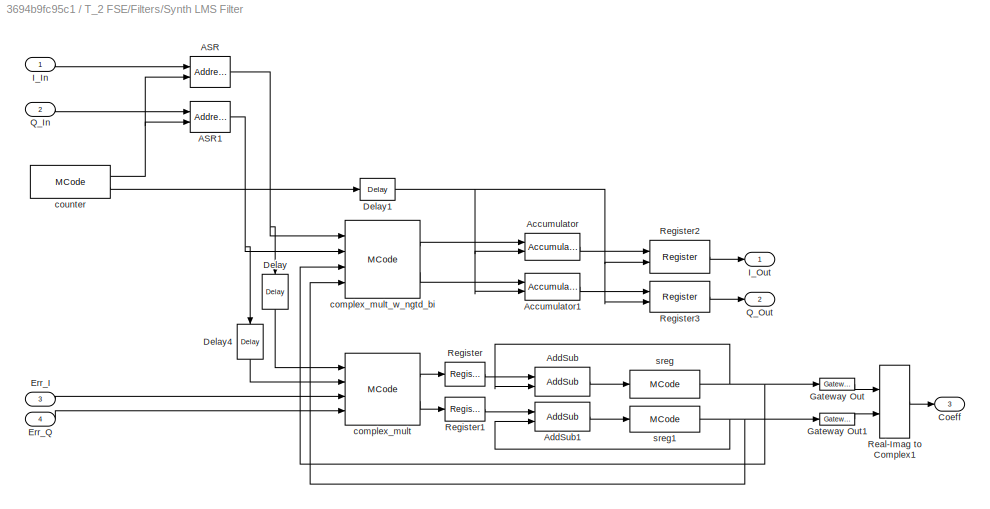
BLOCK [SubSystem] T_2 FSE/Filters/Synth LMS Filter
  FunctionWithSeparateData = off
  MaskHideContents = off
  MinAlgLoopOccurrences = off
  Opaque = off
  Ports = [4, 3]
  PropExecContextOutsideSubsystem = off
  RTWSystemCode = Auto
  RequestExecContextInheritance = off
BLOCK [Reference] T_2 FSE/Filters/Synth LMS Filter/ASR  REF=xbsIndex_r4/Addressable Shift Register
  Optimization = Resource
  Ports = [2, 1]
  SourceBlock = xbsIndex_r4/Addressable Shift Register
  SourceType = Xilinx Addressable Shift Register Block
  block_type = addrsr
  block_version = VER_STRING_GOES_HERE
  dbl_ovrd = off
  depth = 4
  en = off
  has_advanced_control = 0
  infer_latency = off
  infoedit = Delay of configurable length.  Any element in the delay line can be addressed and driven onto the output port.<P><P>Hardware notes: Implemented using SRL16s.  If a Virtex-II device is used, multiple SRLC16s are cascaded together.  <repeated x4 — deduplicated; at blocks: ASR, ASR1>
  initVector = [0]
  sg_icon_stat = 40,31,2,1,white,blue,0,43f2f9be,right,,[ ],[ ]
  sg_mask_display = fprintf('','COMMENT: begin icon graphics');\npatch([0 40 40 0 0 ],[0 0 31 31 0 ],[0.77 0.82 0.91 ]);\nplot([0 40 40 0 0 ],[0 0 31 31 0 ]);\npatch([11.1 16.88 20.88 24.88 28.88 20.88 15.1 11.1 ],[19.44 19.44 23.44 19.44 23.44 23.44 23.44 19.44 ],[1 1 1 ]);\npatch([15.1 20.88 16.88 11.1 15.1 ],[15.44 15.44 19.44 19.44 15.44 ],[0.931 0.946 0.973 ]);\npatch([11.1 16.88 20.88 15.1 11.1 ],[11.44 11.44 15.44 ...<+410ch>  <repeated x4 — deduplicated; at blocks: ASR, ASR1>
  sggui_pos = -1,-1,-1,-1
  use_behavioral_HDL = on
  use_rpm = on
  xl_area = [0,0,0,0,0,0,0]
  xl_use_area = off
BLOCK [Reference] T_2 FSE/Filters/Synth LMS Filter/ASR1  REF=xbsIndex_r4/Addressable Shift Register
  Optimization = Resource
  Ports = [2, 1]
  SourceBlock = xbsIndex_r4/Addressable Shift Register
  SourceType = Xilinx Addressable Shift Register Block
  block_type = addrsr
  block_version = VER_STRING_GOES_HERE
  dbl_ovrd = off
  depth = 4
  en = off
  has_advanced_control = 0
  infer_latency = off
  initVector = [0]
  sg_icon_stat = 40,31,2,1,white,blue,0,43f2f9be,right,,[ ],[ ]
  sggui_pos = -1,-1,-1,-1
  use_behavioral_HDL = on
  use_rpm = on
  xl_area = [0,0,0,0,0,0,0]
  xl_use_area = off
BLOCK [Reference] T_2 FSE/Filters/Synth LMS Filter/Accumulator  REF=xbsIndex_r4/Accumulator
  Ports = [2, 1]
  SourceBlock = xbsIndex_r4/Accumulator
  SourceType = Xilinx Accumulator Block
  block_type = accum
  block_version = VER_STRING_GOES_HERE
  dbl_ovrd = off
  en = off
  has_advanced_control = 0
  hasbypass = off
  implementation = Fabric
  infoedit = Adder or subtracter-based accumulator.   Output type and binary point position match the input.<br><br>Hardware notes: When "Reinitialize with input 'b' on reset" is selected, the accumulator is forced to run at the system rate even if the input 'b' is running at a slower rate.  <repeated x4 — deduplicated; at blocks: Accumulator, Accumulator1>
  infoeditControl = reset for floating point data type must be asserted for a minimum of 2 cycles
  latency = 1
  lsb = -100
  msb = 100
  msb_inp = 100
  n_bits = 36
  operation = Add
  overflow = Wrap
  rst = on
  scale = 1
  sg_icon_stat = 55,27,2,1,white,blue,0,78e016cf,right,,[ ],[ ]
  sg_mask_display = fprintf('','COMMENT: begin icon graphics');\npatch([0 55 55 0 0 ],[0 0 27 27 0 ],[0.77 0.82 0.91 ]);\nplot([0 55 55 0 0 ],[0 0 27 27 0 ]);\npatch([20.325 24.66 27.66 30.66 33.66 27.66 23.325 20.325 ],[16.33 16.33 19.33 16.33 19.33 19.33 19.33 16.33 ],[1 1 1 ]);\npatch([23.325 27.66 24.66 20.325 23.325 ],[13.33 13.33 16.33 16.33 13.33 ],[0.931 0.946 0.973 ]);\npatch([20.325 24.66 27.66 23.325 20.325 ],[...<+435ch>  <repeated x4 — deduplicated; at blocks: Accumulator, Accumulator1>
  sggui_pos = 635,25,356,436
  use_behavioral_HDL = on
  xl_area = [0,0,0,0,0,0,0]
  xl_use_area = off
BLOCK [Reference] T_2 FSE/Filters/Synth LMS Filter/Accumulator1  REF=xbsIndex_r4/Accumulator
  Ports = [2, 1]
  SourceBlock = xbsIndex_r4/Accumulator
  SourceType = Xilinx Accumulator Block
  block_type = accum
  block_version = VER_STRING_GOES_HERE
  dbl_ovrd = off
  en = off
  has_advanced_control = 0
  hasbypass = off
  implementation = Fabric
  infoeditControl = reset for floating point data type must be asserted for a minimum of 2 cycles
  latency = 1
  lsb = -100
  msb = 100
  msb_inp = 100
  n_bits = 36
  operation = Add
  overflow = Wrap
  rst = on
  scale = 1
  sg_icon_stat = 55,27,2,1,white,blue,0,78e016cf,right,,[ ],[ ]
  sggui_pos = 635,25,356,436
  use_behavioral_HDL = on
  xl_area = [0,0,0,0,0,0,0]
  xl_use_area = off
BLOCK [Reference] T_2 FSE/Filters/Synth LMS Filter/AddSub  REF=xbsIndex_r4/AddSub
  Ports = [2, 1]
  SourceBlock = xbsIndex_r4/AddSub
  SourceType = Xilinx Adder/Subtracter Block
  arith_type = Signed  (2's comp)
  bin_pt = 10
  block_type = addsub
  block_version = VER_STRING_GOES_HERE
  dbl_ovrd = off
  en = off
  has_advanced_control = 0
  hw_selection = Fabric
  latency = 0
  mode = Addition
  n_bits = 18
  overflow = Saturate
  pipelined = off
  precision = User Defined
  quantization = Round  (unbiased: +/- Inf)
  sg_icon_stat = 55,29,2,1,white,blue,0,caf28467,right,,[ ],[ ]
  sg_mask_display = fprintf('','COMMENT: begin icon graphics');\npatch([0 55 55 0 0 ],[0 0 29 29 0 ],[0.77 0.82 0.91 ]);\nplot([0 55 55 0 0 ],[0 0 29 29 0 ]);\npatch([18.1 23.88 27.88 31.88 35.88 27.88 22.1 18.1 ],[18.44 18.44 22.44 18.44 22.44 22.44 22.44 18.44 ],[1 1 1 ]);\npatch([22.1 27.88 23.88 18.1 22.1 ],[14.44 14.44 18.44 18.44 14.44 ],[0.931 0.946 0.973 ]);\npatch([18.1 23.88 27.88 22.1 18.1 ],[10.44 10.44 14.44 ...<+409ch>  <repeated x4 — deduplicated; at blocks: AddSub, AddSub1>
  sggui_pos = 889,95,356,331
  use_behavioral_HDL = on
  use_carryin = off
  use_carryout = off
  use_rpm = on
  xl_area = [0,0,0,0,0,0,0]
  xl_use_area = off
BLOCK [Reference] T_2 FSE/Filters/Synth LMS Filter/AddSub1  REF=xbsIndex_r4/AddSub
  Ports = [2, 1]
  SourceBlock = xbsIndex_r4/AddSub
  SourceType = Xilinx Adder/Subtracter Block
  arith_type = Signed  (2's comp)
  bin_pt = 10
  block_type = addsub
  block_version = VER_STRING_GOES_HERE
  dbl_ovrd = off
  en = off
  has_advanced_control = 0
  hw_selection = Fabric
  latency = 0
  mode = Addition
  n_bits = 18
  overflow = Saturate
  pipelined = off
  precision = User Defined
  quantization = Round  (unbiased: +/- Inf)
  sg_icon_stat = 55,29,2,1,white,blue,0,caf28467,right,,[ ],[ ]
  sggui_pos = 889,95,356,331
  use_behavioral_HDL = on
  use_carryin = off
  use_carryout = off
  use_rpm = on
  xl_area = [0,0,0,0,0,0,0]
  xl_use_area = off
BLOCK [Outport] T_2 FSE/Filters/Synth LMS Filter/Coeff
  IconDisplay = Port number
  Port = 3
BLOCK [Reference] T_2 FSE/Filters/Synth LMS Filter/Delay  REF=xbsIndex_r4/Delay
  Ports = [1, 1]
  SourceBlock = xbsIndex_r4/Delay
  SourceType = Xilinx Delay Block
  block_type = delay
  block_version = VER_STRING_GOES_HERE
  dbl_ovrd = off
  en = off
  has_advanced_control = 0
  infoeditControl = Selection of Reset will increase slice count due to use of real FFs and instead of SRLs
  latency = 27
  reg_retiming = off
  rst = off
  sg_icon_stat = 26,35,1,1,white,blue,0,8ecf0849,down,,[ ],[ ]
  sg_mask_display = fprintf('','COMMENT: begin icon graphics');\npatch([0 26 26 0 0 ],[0 0 35 35 0 ],[0.77 0.82 0.91 ]);\nplot([0 26 26 0 0 ],[0 0 35 35 0 ]);\npatch([6.325 10.66 13.66 16.66 19.66 13.66 9.325 6.325 ],[20.33 20.33 23.33 20.33 23.33 23.33 23.33 20.33 ],[1 1 1 ]);\npatch([9.325 13.66 10.66 6.325 9.325 ],[17.33 17.33 20.33 20.33 17.33 ],[0.931 0.946 0.973 ]);\npatch([6.325 10.66 13.66 9.325 6.325 ],[14.33 14....<+351ch>  <repeated x4 — deduplicated; at blocks: Delay, Delay4>
  sggui_pos = -1,-1,-1,-1
  xl_area = [12 24 0 24 0 0 0]
  xl_use_area = off
BLOCK [Reference] T_2 FSE/Filters/Synth LMS Filter/Delay1  REF=xbsIndex_r4/Delay
  Ports = [1, 1]
  SourceBlock = xbsIndex_r4/Delay
  SourceType = Xilinx Delay Block
  block_type = delay
  block_version = VER_STRING_GOES_HERE
  dbl_ovrd = off
  en = off
  has_advanced_control = 0
  infoeditControl = Selection of Reset will increase slice count due to use of real FFs and instead of SRLs
  latency = 3
  reg_retiming = on
  rst = off
  sg_icon_stat = 35,22,1,1,white,blue,0,86b47151,right,,[ ],[ ]
  sg_mask_display = fprintf('','COMMENT: begin icon graphics');\npatch([0 35 35 0 0 ],[0 0 22 22 0 ],[0.77 0.82 0.91 ]);\nplot([0 35 35 0 0 ],[0 0 22 22 0 ]);\npatch([10.325 14.66 17.66 20.66 23.66 17.66 13.325 10.325 ],[14.33 14.33 17.33 14.33 17.33 17.33 17.33 14.33 ],[1 1 1 ]);\npatch([13.325 17.66 14.66 10.325 13.325 ],[11.33 11.33 14.33 14.33 11.33 ],[0.931 0.946 0.973 ]);\npatch([10.325 14.66 17.66 13.325 10.325 ],[...<+352ch>
  sggui_pos = -1,-1,-1,-1
  xl_area = [1 1 0 1 0 0 0]
  xl_use_area = off
BLOCK [Reference] T_2 FSE/Filters/Synth LMS Filter/Delay4  REF=xbsIndex_r4/Delay
  Ports = [1, 1]
  SourceBlock = xbsIndex_r4/Delay
  SourceType = Xilinx Delay Block
  block_type = delay
  block_version = VER_STRING_GOES_HERE
  dbl_ovrd = off
  en = off
  has_advanced_control = 0
  infoeditControl = Selection of Reset will increase slice count due to use of real FFs and instead of SRLs
  latency = 27
  reg_retiming = off
  rst = off
  sg_icon_stat = 26,35,1,1,white,blue,0,8ecf0849,down,,[ ],[ ]
  sggui_pos = -1,-1,-1,-1
  xl_area = [12 24 0 24 0 0 0]
  xl_use_area = off
BLOCK [Inport] T_2 FSE/Filters/Synth LMS Filter/Err_I
  IconDisplay = Port number
  Port = 3
BLOCK [Inport] T_2 FSE/Filters/Synth LMS Filter/Err_Q
  IconDisplay = Port number
  Port = 4
BLOCK [Reference] T_2 FSE/Filters/Synth LMS Filter/Gateway Out  REF=xbsIndex_r4/Gateway Out
  DACChannel = '1'
  LOCs = {}
  Ports = [1, 1]
  SourceBlock = xbsIndex_r4/Gateway Out
  SourceType = Xilinx Gateway Out Block
  UseAsDAC = off
  address_offset = hex2dec('00')
  automatic_assignment = on
  block_type = gatewayout
  block_version = VER_STRING_GOES_HERE
  columns = 1
  has_advanced_control = 0
  hdl_port = off
  infoedit = Gateway out block.  Converts Xilinx fixed point inputs into ouputs of type Simulink integer, double, or fixed point.<P><P>Hardware notes:  In hardware these blocks become top level output ports or are discarded, depending on how they are configured.
  inherit_from_input = off
  interface = None
  intf_description = ''
  intf_name = ''
  io_standard = {}
  locs_specified = off
  rows = 1
  sg_icon_stat = 35,12,1,1,white,grey,1,71272df6,right,,[ ],[ ]
  sg_mask_display = fprintf('','COMMENT: begin icon graphics');\npatch([0 35 35 0 0 ],[0 0 12 12 0 ],[0.88 0.88 0.88 ]);\nplot([0 35 35 0 0 ],[0 0 12 12 0 ]);\npatch([14.775 16.22 17.22 18.22 19.22 17.22 15.775 14.775 ],[7.11 7.11 8.11 7.11 8.11 8.11 8.11 7.11 ],[1 1 1 ]);\npatch([15.775 17.22 16.22 14.775 15.775 ],[6.11 6.11 7.11 7.11 6.11 ],[0.964 0.964 0.964 ]);\npatch([14.775 16.22 17.22 15.775 14.775 ],[5.11 5.11 6.1...<+336ch>
  sggui_pos = -1,-1,-1,-1
  timing_constraint = None
  xl_area = [0 0 0 0 0 0 0]
  xl_use_area = off
BLOCK [Reference] T_2 FSE/Filters/Synth LMS Filter/Gateway Out1  REF=xbsIndex_r4/Gateway Out
  DACChannel = '1'
  LOCs = {}
  Ports = [1, 1]
  SourceBlock = xbsIndex_r4/Gateway Out
  SourceType = Xilinx Gateway Out Block
  UseAsDAC = off
  address_offset = hex2dec('00')
  automatic_assignment = on
  block_type = gatewayout
  block_version = VER_STRING_GOES_HERE
  columns = 1
  has_advanced_control = 0
  hdl_port = off
  infoedit = Gateway out block.  Converts Xilinx fixed point inputs into ouputs of type Simulink integer, double, or fixed point.<P><P>Hardware notes:  In hardware these blocks become top level output ports or are discarded, depending on how they are configured.
  inherit_from_input = off
  interface = None
  intf_description = ''
  intf_name = ''
  io_standard = {}
  locs_specified = off
  rows = 1
  sg_icon_stat = 35,12,1,1,white,grey,1,71272df6,right,,[ ],[ ]
  sg_mask_display = fprintf('','COMMENT: begin icon graphics');\npatch([0 35 35 0 0 ],[0 0 12 12 0 ],[0.88 0.88 0.88 ]);\nplot([0 35 35 0 0 ],[0 0 12 12 0 ]);\npatch([14.775 16.22 17.22 18.22 19.22 17.22 15.775 14.775 ],[7.11 7.11 8.11 7.11 8.11 8.11 8.11 7.11 ],[1 1 1 ]);\npatch([15.775 17.22 16.22 14.775 15.775 ],[6.11 6.11 7.11 7.11 6.11 ],[0.964 0.964 0.964 ]);\npatch([14.775 16.22 17.22 15.775 14.775 ],[5.11 5.11 6.1...<+336ch>
  sggui_pos = -1,-1,-1,-1
  timing_constraint = None
  xl_area = [0 0 0 0 0 0 0]
  xl_use_area = off
BLOCK [Inport] T_2 FSE/Filters/Synth LMS Filter/I_In
  IconDisplay = Port number
BLOCK [Outport] T_2 FSE/Filters/Synth LMS Filter/I_Out
  IconDisplay = Port number
BLOCK [Inport] T_2 FSE/Filters/Synth LMS Filter/Q_In
  IconDisplay = Port number
  Port = 2
BLOCK [Outport] T_2 FSE/Filters/Synth LMS Filter/Q_Out
  IconDisplay = Port number
  Port = 2
BLOCK [RealImagToComplex] T_2 FSE/Filters/Synth LMS Filter/Real-Imag to Complex1
  Ports = [2, 1]
BLOCK [Reference] T_2 FSE/Filters/Synth LMS Filter/Register  REF=xbsIndex_r4/Register
  Ports = [1, 1]
  SourceBlock = xbsIndex_r4/Register
  SourceType = Xilinx Register Block
  block_type = register
  block_version = VER_STRING_GOES_HERE
  dbl_ovrd = off
  en = off
  has_advanced_control = 0
  init = 0
  rst = off
  sg_icon_stat = 40,24,1,1,white,blue,0,711e8842,right,,[ ],[ ]
  sg_mask_display = fprintf('','COMMENT: begin icon graphics');\npatch([0 40 40 0 0 ],[0 0 24 24 0 ],[0.77 0.82 0.91 ]);\nplot([0 40 40 0 0 ],[0 0 24 24 0 ]);\npatch([13.325 17.66 20.66 23.66 26.66 20.66 16.325 13.325 ],[15.33 15.33 18.33 15.33 18.33 18.33 18.33 15.33 ],[1 1 1 ]);\npatch([16.325 20.66 17.66 13.325 16.325 ],[12.33 12.33 15.33 15.33 12.33 ],[0.931 0.946 0.973 ]);\npatch([13.325 17.66 20.66 16.325 13.325 ],[...<+352ch>  <repeated x4 — deduplicated; at blocks: Register, Register1>
  sggui_pos = -1,-1,-1,-1
  xl_area = [18 36 0 0 0 0 0]
  xl_use_area = off
BLOCK [Reference] T_2 FSE/Filters/Synth LMS Filter/Register1  REF=xbsIndex_r4/Register
  Ports = [1, 1]
  SourceBlock = xbsIndex_r4/Register
  SourceType = Xilinx Register Block
  block_type = register
  block_version = VER_STRING_GOES_HERE
  dbl_ovrd = off
  en = off
  has_advanced_control = 0
  init = 0
  rst = off
  sg_icon_stat = 40,24,1,1,white,blue,0,711e8842,right,,[ ],[ ]
  sggui_pos = -1,-1,-1,-1
  xl_area = [18 36 0 0 0 0 0]
  xl_use_area = off
BLOCK [Reference] T_2 FSE/Filters/Synth LMS Filter/Register2  REF=xbsIndex_r4/Register
  Ports = [2, 1]
  SourceBlock = xbsIndex_r4/Register
  SourceType = Xilinx Register Block
  block_type = register
  block_version = VER_STRING_GOES_HERE
  dbl_ovrd = off
  en = on
  has_advanced_control = 0
  init = 0
  rst = off
  sg_icon_stat = 60,33,2,1,white,blue,0,78e016cf,right,,[ ],[ ]
  sg_mask_display = fprintf('','COMMENT: begin icon graphics');\npatch([0 60 60 0 0 ],[0 0 33 33 0 ],[0.77 0.82 0.91 ]);\nplot([0 60 60 0 0 ],[0 0 33 33 0 ]);\npatch([21.1 26.88 30.88 34.88 38.88 30.88 25.1 21.1 ],[20.44 20.44 24.44 20.44 24.44 24.44 24.44 20.44 ],[1 1 1 ]);\npatch([25.1 30.88 26.88 21.1 25.1 ],[16.44 16.44 20.44 20.44 16.44 ],[0.931 0.946 0.973 ]);\npatch([21.1 26.88 30.88 25.1 21.1 ],[12.44 12.44 16.44 ...<+411ch>
  sggui_pos = -1,-1,-1,-1
  xl_area = [18 36 0 0 0 0 0]
  xl_use_area = off
BLOCK [Reference] T_2 FSE/Filters/Synth LMS Filter/Register3  REF=xbsIndex_r4/Register
  Ports = [2, 1]
  SourceBlock = xbsIndex_r4/Register
  SourceType = Xilinx Register Block
  block_type = register
  block_version = VER_STRING_GOES_HERE
  dbl_ovrd = off
  en = on
  has_advanced_control = 0
  init = 0
  rst = off
  sg_icon_stat = 60,31,2,1,white,blue,0,78e016cf,right,,[ ],[ ]
  sg_mask_display = fprintf('','COMMENT: begin icon graphics');\npatch([0 60 60 0 0 ],[0 0 31 31 0 ],[0.77 0.82 0.91 ]);\nplot([0 60 60 0 0 ],[0 0 31 31 0 ]);\npatch([21.1 26.88 30.88 34.88 38.88 30.88 25.1 21.1 ],[19.44 19.44 23.44 19.44 23.44 23.44 23.44 19.44 ],[1 1 1 ]);\npatch([25.1 30.88 26.88 21.1 25.1 ],[15.44 15.44 19.44 19.44 15.44 ],[0.931 0.946 0.973 ]);\npatch([21.1 26.88 30.88 25.1 21.1 ],[11.44 11.44 15.44 ...<+411ch>
  sggui_pos = -1,-1,-1,-1
  xl_area = [18 36 0 0 0 0 0]
  xl_use_area = off
BLOCK [Reference] T_2 FSE/Filters/Synth LMS Filter/complex_mult  REF=xbsIndex_r4/MCode
  Ports = [4, 2]
  SourceBlock = xbsIndex_r4/MCode
  SourceType = Xilinx MCode Block Block
  block_type = mcode
  block_version = 8.1
  dbl_ovrd = off
  defparams = {'negate_bi', 0}
  enable_debug = off
  enable_stdout = off
  explicit_period = off
  has_advanced_control = 0
  hide_port_list = {}
  infoedit = Pass input values to a MATLAB function for evaluation in Xilinx fixed-point type. The input ports of the block are input arguments of the function. The output ports of the block are output arguments of the function.  <repeated x13 — deduplicated; at blocks: complex_mult, complex_mult_w_ngtd_bi, counter, sreg, sreg1, IMap, MCode, QMap>
  mfname = complex_mult
  period = 1
  sg_icon_stat = 75,72,4,2,white,blue,0,391f26ab,right,,[ ],[ ]
  sg_mask_display = fprintf('','COMMENT: begin icon graphics');\npatch([0 75 75 0 0 ],[0 0 72 72 0 ],[0.77 0.82 0.91 ]);\nplot([0 75 75 0 0 ],[0 0 72 72 0 ]);\npatch([14.75 29.2 39.2 49.2 59.2 39.2 24.75 14.75 ],[47.1 47.1 57.1 47.1 57.1 57.1 57.1 47.1 ],[1 1 1 ]);\npatch([24.75 39.2 29.2 14.75 24.75 ],[37.1 37.1 47.1 47.1 37.1 ],[0.931 0.946 0.973 ]);\npatch([14.75 29.2 39.2 24.75 14.75 ],[27.1 27.1 37.1 37.1 27.1 ],[1 1...<+544ch>
  sggui_pos = -1,-1,-1,-1
  suppress_output = off
  xl_area = [0, 0, 0, 0, 0, 0, 0]
  xl_use_area = off
BLOCK [Reference] T_2 FSE/Filters/Synth LMS Filter/complex_mult_w_ngtd_bi  REF=xbsIndex_r4/MCode
  Ports = [4, 2]
  SourceBlock = xbsIndex_r4/MCode
  SourceType = Xilinx MCode Block Block
  block_type = mcode
  block_version = 8.1
  dbl_ovrd = off
  defparams = {'negate_bi', 1}
  enable_debug = off
  enable_stdout = off
  explicit_period = off
  has_advanced_control = 0
  hide_port_list = {}
  mfname = complex_mult
  period = 1
  sg_icon_stat = 75,78,4,2,white,blue,0,23cc2057,right,,[ ],[ ]
  sg_mask_display = fprintf('','COMMENT: begin icon graphics');\npatch([0 75 75 0 0 ],[0 0 78 78 0 ],[0.77 0.82 0.91 ]);\nplot([0 75 75 0 0 ],[0 0 78 78 0 ]);\npatch([14.75 29.2 39.2 49.2 59.2 39.2 24.75 14.75 ],[50.1 50.1 60.1 50.1 60.1 60.1 60.1 50.1 ],[1 1 1 ]);\npatch([24.75 39.2 29.2 14.75 24.75 ],[40.1 40.1 50.1 50.1 40.1 ],[0.931 0.946 0.973 ]);\npatch([14.75 29.2 39.2 24.75 14.75 ],[30.1 30.1 40.1 40.1 30.1 ],[1 1...<+544ch>
  sggui_pos = -1,-1,-1,-1
  suppress_output = off
  xl_area = [0, 0, 0, 0, 0, 0, 0]
  xl_use_area = off
BLOCK [Reference] T_2 FSE/Filters/Synth LMS Filter/counter  REF=xbsIndex_r4/MCode
  Ports = [0, 2]
  SourceBlock = xbsIndex_r4/MCode
  SourceType = Xilinx MCode Block Block
  block_type = mcode
  block_version = 8.1
  dbl_ovrd = off
  defparams = {'reset', false,'init', 3}
  enable_debug = off
  enable_stdout = off
  explicit_period = on
  has_advanced_control = 0
  hide_port_list = {}
  mfname = fir_fsm
  period = 1
  sg_icon_stat = 80,33,0,2,white,blue,0,9498b4ea,right,,[ ],[ ]
  sg_mask_display = fprintf('','COMMENT: begin icon graphics');\npatch([0 80 80 0 0 ],[0 0 33 33 0 ],[0.77 0.82 0.91 ]);\nplot([0 80 80 0 0 ],[0 0 33 33 0 ]);\npatch([31.1 36.88 40.88 44.88 48.88 40.88 35.1 31.1 ],[20.44 20.44 24.44 20.44 24.44 24.44 24.44 20.44 ],[1 1 1 ]);\npatch([35.1 40.88 36.88 31.1 35.1 ],[16.44 16.44 20.44 20.44 16.44 ],[0.931 0.946 0.973 ]);\npatch([31.1 36.88 40.88 35.1 31.1 ],[12.44 12.44 16.44 ...<+258ch>
  sggui_pos = -1,-1,-1,-1
  suppress_output = off
  xl_area = [0, 0, 0, 0, 0, 0, 0]
  xl_use_area = off
BLOCK [Reference] T_2 FSE/Filters/Synth LMS Filter/sreg  REF=xbsIndex_r4/MCode
  Ports = [1, 1]
  SourceBlock = xbsIndex_r4/MCode
  SourceType = Xilinx MCode Block Block
  block_type = mcode
  block_version = 8.1
  dbl_ovrd = off
  defparams = {'len',4,'init',init_i}
  enable_debug = off
  enable_stdout = off
  explicit_period = off
  has_advanced_control = 0
  hide_port_list = {}
  mfname = sreg
  period = 1
  sg_icon_stat = 70,28,1,1,white,blue,0,2f378f78,right,,[ ],[ ]
  sg_mask_display = fprintf('','COMMENT: begin icon graphics');\npatch([0 70 70 0 0 ],[0 0 28 28 0 ],[0.77 0.82 0.91 ]);\nplot([0 70 70 0 0 ],[0 0 28 28 0 ]);\npatch([26.1 31.88 35.88 39.88 43.88 35.88 30.1 26.1 ],[18.44 18.44 22.44 18.44 22.44 22.44 22.44 18.44 ],[1 1 1 ]);\npatch([30.1 35.88 31.88 26.1 30.1 ],[14.44 14.44 18.44 18.44 14.44 ],[0.931 0.946 0.973 ]);\npatch([26.1 31.88 35.88 30.1 26.1 ],[10.44 10.44 14.44 ...<+334ch>
  sggui_pos = 677,43,356,331
  suppress_output = off
  xl_area = [0, 0, 0, 0, 0, 0, 0]
  xl_use_area = off
BLOCK [Reference] T_2 FSE/Filters/Synth LMS Filter/sreg1  REF=xbsIndex_r4/MCode
  Ports = [1, 1]
  SourceBlock = xbsIndex_r4/MCode
  SourceType = Xilinx MCode Block Block
  block_type = mcode
  block_version = 8.1
  dbl_ovrd = off
  defparams = {'len',4,'init',init_q}
  enable_debug = off
  enable_stdout = off
  explicit_period = off
  has_advanced_control = 0
  hide_port_list = {}
  mfname = sreg
  period = 1
  sg_icon_stat = 70,26,1,1,white,blue,0,2f378f78,right,,[ ],[ ]
  sg_mask_display = fprintf('','COMMENT: begin icon graphics');\npatch([0 70 70 0 0 ],[0 0 26 26 0 ],[0.77 0.82 0.91 ]);\nplot([0 70 70 0 0 ],[0 0 26 26 0 ]);\npatch([28.325 32.66 35.66 38.66 41.66 35.66 31.325 28.325 ],[16.33 16.33 19.33 16.33 19.33 19.33 19.33 16.33 ],[1 1 1 ]);\npatch([31.325 35.66 32.66 28.325 31.325 ],[13.33 13.33 16.33 16.33 13.33 ],[0.931 0.946 0.973 ]);\npatch([28.325 32.66 35.66 31.325 28.325 ],[...<+358ch>
  sggui_pos = 677,43,356,331
  suppress_output = off
  xl_area = [0, 0, 0, 0, 0, 0, 0]
  xl_use_area = off
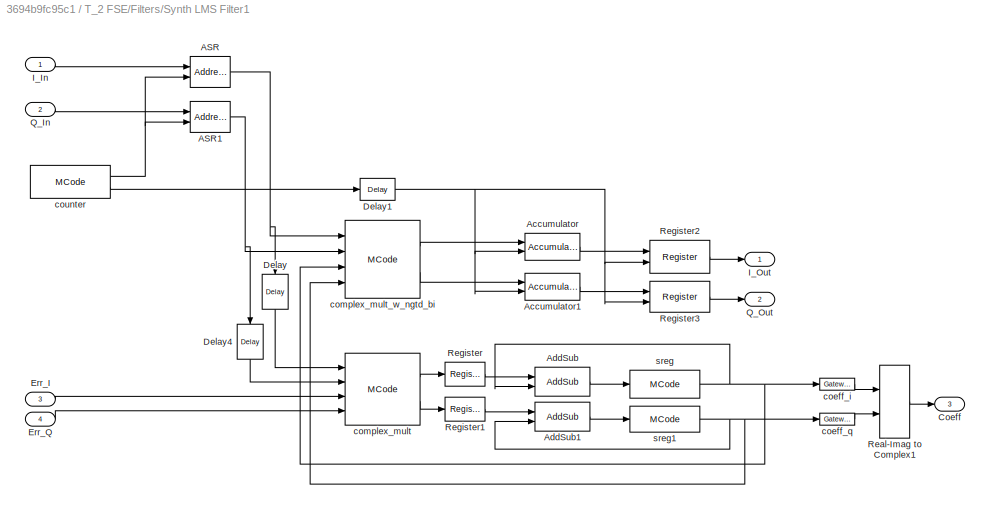
BLOCK [SubSystem] T_2 FSE/Filters/Synth LMS Filter1
  FunctionWithSeparateData = off
  MaskHideContents = off
  MinAlgLoopOccurrences = off
  Opaque = off
  Ports = [4, 3]
  PropExecContextOutsideSubsystem = off
  RTWSystemCode = Auto
  RequestExecContextInheritance = off
BLOCK [Reference] T_2 FSE/Filters/Synth LMS Filter1/ASR  REF=xbsIndex_r4/Addressable Shift Register
  Optimization = Resource
  Ports = [2, 1]
  SourceBlock = xbsIndex_r4/Addressable Shift Register
  SourceType = Xilinx Addressable Shift Register Block
  block_type = addrsr
  block_version = VER_STRING_GOES_HERE
  dbl_ovrd = off
  depth = 4
  en = off
  has_advanced_control = 0
  infer_latency = off
  initVector = [0]
  sg_icon_stat = 40,31,2,1,white,blue,0,43f2f9be,right,,[ ],[ ]
  sggui_pos = -1,-1,-1,-1
  use_behavioral_HDL = on
  use_rpm = on
  xl_area = [0,0,0,0,0,0,0]
  xl_use_area = off
BLOCK [Reference] T_2 FSE/Filters/Synth LMS Filter1/ASR1  REF=xbsIndex_r4/Addressable Shift Register
  Optimization = Resource
  Ports = [2, 1]
  SourceBlock = xbsIndex_r4/Addressable Shift Register
  SourceType = Xilinx Addressable Shift Register Block
  block_type = addrsr
  block_version = VER_STRING_GOES_HERE
  dbl_ovrd = off
  depth = 4
  en = off
  has_advanced_control = 0
  infer_latency = off
  initVector = [0]
  sg_icon_stat = 40,31,2,1,white,blue,0,43f2f9be,right,,[ ],[ ]
  sggui_pos = -1,-1,-1,-1
  use_behavioral_HDL = on
  use_rpm = on
  xl_area = [0,0,0,0,0,0,0]
  xl_use_area = off
BLOCK [Reference] T_2 FSE/Filters/Synth LMS Filter1/Accumulator  REF=xbsIndex_r4/Accumulator
  Ports = [2, 1]
  SourceBlock = xbsIndex_r4/Accumulator
  SourceType = Xilinx Accumulator Block
  block_type = accum
  block_version = VER_STRING_GOES_HERE
  dbl_ovrd = off
  en = off
  has_advanced_control = 0
  hasbypass = off
  implementation = Fabric
  infoeditControl = reset for floating point data type must be asserted for a minimum of 2 cycles
  latency = 1
  lsb = -100
  msb = 100
  msb_inp = 100
  n_bits = 36
  operation = Add
  overflow = Wrap
  rst = on
  scale = 1
  sg_icon_stat = 55,27,2,1,white,blue,0,78e016cf,right,,[ ],[ ]
  sggui_pos = 635,25,356,436
  use_behavioral_HDL = on
  xl_area = [0,0,0,0,0,0,0]
  xl_use_area = off
BLOCK [Reference] T_2 FSE/Filters/Synth LMS Filter1/Accumulator1  REF=xbsIndex_r4/Accumulator
  Ports = [2, 1]
  SourceBlock = xbsIndex_r4/Accumulator
  SourceType = Xilinx Accumulator Block
  block_type = accum
  block_version = VER_STRING_GOES_HERE
  dbl_ovrd = off
  en = off
  has_advanced_control = 0
  hasbypass = off
  implementation = Fabric
  infoeditControl = reset for floating point data type must be asserted for a minimum of 2 cycles
  latency = 1
  lsb = -100
  msb = 100
  msb_inp = 100
  n_bits = 36
  operation = Add
  overflow = Wrap
  rst = on
  scale = 1
  sg_icon_stat = 55,27,2,1,white,blue,0,78e016cf,right,,[ ],[ ]
  sggui_pos = 635,25,356,436
  use_behavioral_HDL = on
  xl_area = [0,0,0,0,0,0,0]
  xl_use_area = off
BLOCK [Reference] T_2 FSE/Filters/Synth LMS Filter1/AddSub  REF=xbsIndex_r4/AddSub
  Ports = [2, 1]
  SourceBlock = xbsIndex_r4/AddSub
  SourceType = Xilinx Adder/Subtracter Block
  arith_type = Signed  (2's comp)
  bin_pt = 10
  block_type = addsub
  block_version = VER_STRING_GOES_HERE
  dbl_ovrd = off
  en = off
  has_advanced_control = 0
  hw_selection = Fabric
  latency = 0
  mode = Addition
  n_bits = 18
  overflow = Saturate
  pipelined = off
  precision = User Defined
  quantization = Round  (unbiased: +/- Inf)
  sg_icon_stat = 55,29,2,1,white,blue,0,caf28467,right,,[ ],[ ]
  sggui_pos = 889,95,356,331
  use_behavioral_HDL = on
  use_carryin = off
  use_carryout = off
  use_rpm = on
  xl_area = [0,0,0,0,0,0,0]
  xl_use_area = off
BLOCK [Reference] T_2 FSE/Filters/Synth LMS Filter1/AddSub1  REF=xbsIndex_r4/AddSub
  Ports = [2, 1]
  SourceBlock = xbsIndex_r4/AddSub
  SourceType = Xilinx Adder/Subtracter Block
  arith_type = Signed  (2's comp)
  bin_pt = 10
  block_type = addsub
  block_version = VER_STRING_GOES_HERE
  dbl_ovrd = off
  en = off
  has_advanced_control = 0
  hw_selection = Fabric
  latency = 0
  mode = Addition
  n_bits = 18
  overflow = Saturate
  pipelined = off
  precision = User Defined
  quantization = Round  (unbiased: +/- Inf)
  sg_icon_stat = 55,29,2,1,white,blue,0,caf28467,right,,[ ],[ ]
  sggui_pos = 889,95,356,331
  use_behavioral_HDL = on
  use_carryin = off
  use_carryout = off
  use_rpm = on
  xl_area = [0,0,0,0,0,0,0]
  xl_use_area = off
BLOCK [Outport] T_2 FSE/Filters/Synth LMS Filter1/Coeff
  IconDisplay = Port number
  Port = 3
BLOCK [Reference] T_2 FSE/Filters/Synth LMS Filter1/Delay  REF=xbsIndex_r4/Delay
  Ports = [1, 1]
  SourceBlock = xbsIndex_r4/Delay
  SourceType = Xilinx Delay Block
  block_type = delay
  block_version = VER_STRING_GOES_HERE
  dbl_ovrd = off
  en = off
  has_advanced_control = 0
  infoeditControl = Selection of Reset will increase slice count due to use of real FFs and instead of SRLs
  latency = 27
  reg_retiming = off
  rst = off
  sg_icon_stat = 26,35,1,1,white,blue,0,8ecf0849,down,,[ ],[ ]
  sggui_pos = -1,-1,-1,-1
  xl_area = [12 24 0 24 0 0 0]
  xl_use_area = off
BLOCK [Reference] T_2 FSE/Filters/Synth LMS Filter1/Delay1  REF=xbsIndex_r4/Delay
  Ports = [1, 1]
  SourceBlock = xbsIndex_r4/Delay
  SourceType = Xilinx Delay Block
  block_type = delay
  block_version = VER_STRING_GOES_HERE
  dbl_ovrd = off
  en = off
  has_advanced_control = 0
  infoeditControl = Selection of Reset will increase slice count due to use of real FFs and instead of SRLs
  latency = 3
  reg_retiming = on
  rst = off
  sg_icon_stat = 35,22,1,1,white,blue,0,86b47151,right,,[ ],[ ]
  sg_mask_display = fprintf('','COMMENT: begin icon graphics');\npatch([0 35 35 0 0 ],[0 0 22 22 0 ],[0.77 0.82 0.91 ]);\nplot([0 35 35 0 0 ],[0 0 22 22 0 ]);\npatch([10.325 14.66 17.66 20.66 23.66 17.66 13.325 10.325 ],[14.33 14.33 17.33 14.33 17.33 17.33 17.33 14.33 ],[1 1 1 ]);\npatch([13.325 17.66 14.66 10.325 13.325 ],[11.33 11.33 14.33 14.33 11.33 ],[0.931 0.946 0.973 ]);\npatch([10.325 14.66 17.66 13.325 10.325 ],[...<+352ch>
  sggui_pos = -1,-1,-1,-1
  xl_area = [1 1 0 1 0 0 0]
  xl_use_area = off
BLOCK [Reference] T_2 FSE/Filters/Synth LMS Filter1/Delay4  REF=xbsIndex_r4/Delay
  Ports = [1, 1]
  SourceBlock = xbsIndex_r4/Delay
  SourceType = Xilinx Delay Block
  block_type = delay
  block_version = VER_STRING_GOES_HERE
  dbl_ovrd = off
  en = off
  has_advanced_control = 0
  infoeditControl = Selection of Reset will increase slice count due to use of real FFs and instead of SRLs
  latency = 27
  reg_retiming = off
  rst = off
  sg_icon_stat = 26,35,1,1,white,blue,0,8ecf0849,down,,[ ],[ ]
  sggui_pos = -1,-1,-1,-1
  xl_area = [12 24 0 24 0 0 0]
  xl_use_area = off
BLOCK [Inport] T_2 FSE/Filters/Synth LMS Filter1/Err_I
  IconDisplay = Port number
  Port = 3
BLOCK [Inport] T_2 FSE/Filters/Synth LMS Filter1/Err_Q
  IconDisplay = Port number
  Port = 4
BLOCK [Inport] T_2 FSE/Filters/Synth LMS Filter1/I_In
  IconDisplay = Port number
BLOCK [Outport] T_2 FSE/Filters/Synth LMS Filter1/I_Out
  IconDisplay = Port number
BLOCK [Inport] T_2 FSE/Filters/Synth LMS Filter1/Q_In
  IconDisplay = Port number
  Port = 2
BLOCK [Outport] T_2 FSE/Filters/Synth LMS Filter1/Q_Out
  IconDisplay = Port number
  Port = 2
BLOCK [RealImagToComplex] T_2 FSE/Filters/Synth LMS Filter1/Real-Imag to Complex1
  Ports = [2, 1]
BLOCK [Reference] T_2 FSE/Filters/Synth LMS Filter1/Register  REF=xbsIndex_r4/Register
  Ports = [1, 1]
  SourceBlock = xbsIndex_r4/Register
  SourceType = Xilinx Register Block
  block_type = register
  block_version = VER_STRING_GOES_HERE
  dbl_ovrd = off
  en = off
  has_advanced_control = 0
  init = 0
  rst = off
  sg_icon_stat = 40,24,1,1,white,blue,0,711e8842,right,,[ ],[ ]
  sggui_pos = -1,-1,-1,-1
  xl_area = [18 36 0 0 0 0 0]
  xl_use_area = off
BLOCK [Reference] T_2 FSE/Filters/Synth LMS Filter1/Register1  REF=xbsIndex_r4/Register
  Ports = [1, 1]
  SourceBlock = xbsIndex_r4/Register
  SourceType = Xilinx Register Block
  block_type = register
  block_version = VER_STRING_GOES_HERE
  dbl_ovrd = off
  en = off
  has_advanced_control = 0
  init = 0
  rst = off
  sg_icon_stat = 40,24,1,1,white,blue,0,711e8842,right,,[ ],[ ]
  sggui_pos = -1,-1,-1,-1
  xl_area = [18 36 0 0 0 0 0]
  xl_use_area = off
BLOCK [Reference] T_2 FSE/Filters/Synth LMS Filter1/Register2  REF=xbsIndex_r4/Register
  Ports = [2, 1]
  SourceBlock = xbsIndex_r4/Register
  SourceType = Xilinx Register Block
  block_type = register
  block_version = VER_STRING_GOES_HERE
  dbl_ovrd = off
  en = on
  has_advanced_control = 0
  init = 0
  rst = off
  sg_icon_stat = 60,33,2,1,white,blue,0,78e016cf,right,,[ ],[ ]
  sg_mask_display = fprintf('','COMMENT: begin icon graphics');\npatch([0 60 60 0 0 ],[0 0 33 33 0 ],[0.77 0.82 0.91 ]);\nplot([0 60 60 0 0 ],[0 0 33 33 0 ]);\npatch([21.1 26.88 30.88 34.88 38.88 30.88 25.1 21.1 ],[20.44 20.44 24.44 20.44 24.44 24.44 24.44 20.44 ],[1 1 1 ]);\npatch([25.1 30.88 26.88 21.1 25.1 ],[16.44 16.44 20.44 20.44 16.44 ],[0.931 0.946 0.973 ]);\npatch([21.1 26.88 30.88 25.1 21.1 ],[12.44 12.44 16.44 ...<+411ch>
  sggui_pos = -1,-1,-1,-1
  xl_area = [18 36 0 0 0 0 0]
  xl_use_area = off
BLOCK [Reference] T_2 FSE/Filters/Synth LMS Filter1/Register3  REF=xbsIndex_r4/Register
  Ports = [2, 1]
  SourceBlock = xbsIndex_r4/Register
  SourceType = Xilinx Register Block
  block_type = register
  block_version = VER_STRING_GOES_HERE
  dbl_ovrd = off
  en = on
  has_advanced_control = 0
  init = 0
  rst = off
  sg_icon_stat = 60,31,2,1,white,blue,0,78e016cf,right,,[ ],[ ]
  sg_mask_display = fprintf('','COMMENT: begin icon graphics');\npatch([0 60 60 0 0 ],[0 0 31 31 0 ],[0.77 0.82 0.91 ]);\nplot([0 60 60 0 0 ],[0 0 31 31 0 ]);\npatch([21.1 26.88 30.88 34.88 38.88 30.88 25.1 21.1 ],[19.44 19.44 23.44 19.44 23.44 23.44 23.44 19.44 ],[1 1 1 ]);\npatch([25.1 30.88 26.88 21.1 25.1 ],[15.44 15.44 19.44 19.44 15.44 ],[0.931 0.946 0.973 ]);\npatch([21.1 26.88 30.88 25.1 21.1 ],[11.44 11.44 15.44 ...<+411ch>
  sggui_pos = -1,-1,-1,-1
  xl_area = [18 36 0 0 0 0 0]
  xl_use_area = off
BLOCK [Reference] T_2 FSE/Filters/Synth LMS Filter1/coeff_i  REF=xbsIndex_r4/Gateway Out
  DACChannel = '1'
  LOCs = {}
  Ports = [1, 1]
  SourceBlock = xbsIndex_r4/Gateway Out
  SourceType = Xilinx Gateway Out Block
  UseAsDAC = off
  address_offset = hex2dec('00')
  automatic_assignment = on
  block_type = gatewayout
  block_version = VER_STRING_GOES_HERE
  columns = 1
  has_advanced_control = 0
  hdl_port = on
  infoedit = Gateway out block.  Converts Xilinx fixed-point or floating-point type inputs into ouputs of type Simulink integer, single, double, or fixed-point.<br><br>Hardware notes:  In hardware these blocks become top level output ports or are discarded, depending on how they are configured.  <repeated x8 — deduplicated; at blocks: coeff_i, coeff_q, dh_i, dh_q, e_i, e_q, i_out, q_out>
  inherit_from_input = off
  interface = None
  intf_description = ''
  intf_name = ''
  io_standard = {}
  locs_specified = off
  rows = 1
  sg_icon_stat = 35,12,1,1,white,yellow,1,cc31b7ac,right,,[ ],[ ]
  sg_mask_display = fprintf('','COMMENT: begin icon graphics');\npatch([0 35 35 0 0 ],[0 0 12 12 0 ],[0.95 0.93 0.65 ]);\nplot([0 35 35 0 0 ],[0 0 12 12 0 ]);\npatch([14.775 16.22 17.22 18.22 19.22 17.22 15.775 14.775 ],[7.11 7.11 8.11 7.11 8.11 8.11 8.11 7.11 ],[1 1 1 ]);\npatch([15.775 17.22 16.22 14.775 15.775 ],[6.11 6.11 7.11 7.11 6.11 ],[0.985 0.979 0.895 ]);\npatch([14.775 16.22 17.22 15.775 14.775 ],[5.11 5.11 6.1...<+381ch>
  sggui_pos = -1,-1,-1,-1
  timing_constraint = None
  xl_area = [0 0 0 0 0 0 0]
  xl_use_area = off
BLOCK [Reference] T_2 FSE/Filters/Synth LMS Filter1/coeff_q  REF=xbsIndex_r4/Gateway Out
  DACChannel = '1'
  LOCs = {}
  Ports = [1, 1]
  SourceBlock = xbsIndex_r4/Gateway Out
  SourceType = Xilinx Gateway Out Block
  UseAsDAC = off
  address_offset = hex2dec('00')
  automatic_assignment = on
  block_type = gatewayout
  block_version = VER_STRING_GOES_HERE
  columns = 1
  has_advanced_control = 0
  hdl_port = on
  inherit_from_input = off
  interface = None
  intf_description = ''
  intf_name = ''
  io_standard = {}
  locs_specified = off
  rows = 1
  sg_icon_stat = 35,12,1,1,white,yellow,1,71272df6,right,,[ ],[ ]
  sg_mask_display = fprintf('','COMMENT: begin icon graphics');\npatch([0 35 35 0 0 ],[0 0 12 12 0 ],[0.95 0.93 0.65 ]);\nplot([0 35 35 0 0 ],[0 0 12 12 0 ]);\npatch([14.775 16.22 17.22 18.22 19.22 17.22 15.775 14.775 ],[7.11 7.11 8.11 7.11 8.11 8.11 8.11 7.11 ],[1 1 1 ]);\npatch([15.775 17.22 16.22 14.775 15.775 ],[6.11 6.11 7.11 7.11 6.11 ],[0.985 0.979 0.895 ]);\npatch([14.775 16.22 17.22 15.775 14.775 ],[5.11 5.11 6.1...<+336ch>
  sggui_pos = -1,-1,-1,-1
  timing_constraint = None
  xl_area = [0 0 0 0 0 0 0]
  xl_use_area = off
BLOCK [Reference] T_2 FSE/Filters/Synth LMS Filter1/complex_mult  REF=xbsIndex_r4/MCode
  Ports = [4, 2]
  SourceBlock = xbsIndex_r4/MCode
  SourceType = Xilinx MCode Block Block
  block_type = mcode
  block_version = 8.1
  dbl_ovrd = off
  defparams = {'negate_bi', 0}
  enable_debug = off
  enable_stdout = off
  explicit_period = off
  has_advanced_control = 0
  hide_port_list = {}
  mfname = complex_mult
  period = 1
  sg_icon_stat = 75,72,4,2,white,blue,0,391f26ab,right,,[ ],[ ]
  sg_mask_display = fprintf('','COMMENT: begin icon graphics');\npatch([0 75 75 0 0 ],[0 0 72 72 0 ],[0.77 0.82 0.91 ]);\nplot([0 75 75 0 0 ],[0 0 72 72 0 ]);\npatch([14.75 29.2 39.2 49.2 59.2 39.2 24.75 14.75 ],[47.1 47.1 57.1 47.1 57.1 57.1 57.1 47.1 ],[1 1 1 ]);\npatch([24.75 39.2 29.2 14.75 24.75 ],[37.1 37.1 47.1 47.1 37.1 ],[0.931 0.946 0.973 ]);\npatch([14.75 29.2 39.2 24.75 14.75 ],[27.1 27.1 37.1 37.1 27.1 ],[1 1...<+544ch>
  sggui_pos = -1,-1,-1,-1
  suppress_output = off
  xl_area = [0, 0, 0, 0, 0, 0, 0]
  xl_use_area = off
BLOCK [Reference] T_2 FSE/Filters/Synth LMS Filter1/complex_mult_w_ngtd_bi  REF=xbsIndex_r4/MCode
  Ports = [4, 2]
  SourceBlock = xbsIndex_r4/MCode
  SourceType = Xilinx MCode Block Block
  block_type = mcode
  block_version = 8.1
  dbl_ovrd = off
  defparams = {'negate_bi', 1}
  enable_debug = off
  enable_stdout = off
  explicit_period = off
  has_advanced_control = 0
  hide_port_list = {}
  mfname = complex_mult
  period = 1
  sg_icon_stat = 75,78,4,2,white,blue,0,23cc2057,right,,[ ],[ ]
  sg_mask_display = fprintf('','COMMENT: begin icon graphics');\npatch([0 75 75 0 0 ],[0 0 78 78 0 ],[0.77 0.82 0.91 ]);\nplot([0 75 75 0 0 ],[0 0 78 78 0 ]);\npatch([14.75 29.2 39.2 49.2 59.2 39.2 24.75 14.75 ],[50.1 50.1 60.1 50.1 60.1 60.1 60.1 50.1 ],[1 1 1 ]);\npatch([24.75 39.2 29.2 14.75 24.75 ],[40.1 40.1 50.1 50.1 40.1 ],[0.931 0.946 0.973 ]);\npatch([14.75 29.2 39.2 24.75 14.75 ],[30.1 30.1 40.1 40.1 30.1 ],[1 1...<+544ch>
  sggui_pos = -1,-1,-1,-1
  suppress_output = off
  xl_area = [0, 0, 0, 0, 0, 0, 0]
  xl_use_area = off
BLOCK [Reference] T_2 FSE/Filters/Synth LMS Filter1/counter  REF=xbsIndex_r4/MCode
  Ports = [0, 2]
  SourceBlock = xbsIndex_r4/MCode
  SourceType = Xilinx MCode Block Block
  block_type = mcode
  block_version = 8.1
  dbl_ovrd = off
  defparams = {'reset', false,'init', 3}
  enable_debug = off
  enable_stdout = off
  explicit_period = on
  has_advanced_control = 0
  hide_port_list = {}
  mfname = fir_fsm
  period = 1
  sg_icon_stat = 80,33,0,2,white,blue,0,9498b4ea,right,,[ ],[ ]
  sg_mask_display = fprintf('','COMMENT: begin icon graphics');\npatch([0 80 80 0 0 ],[0 0 33 33 0 ],[0.77 0.82 0.91 ]);\nplot([0 80 80 0 0 ],[0 0 33 33 0 ]);\npatch([31.1 36.88 40.88 44.88 48.88 40.88 35.1 31.1 ],[20.44 20.44 24.44 20.44 24.44 24.44 24.44 20.44 ],[1 1 1 ]);\npatch([35.1 40.88 36.88 31.1 35.1 ],[16.44 16.44 20.44 20.44 16.44 ],[0.931 0.946 0.973 ]);\npatch([31.1 36.88 40.88 35.1 31.1 ],[12.44 12.44 16.44 ...<+258ch>
  sggui_pos = -1,-1,-1,-1
  suppress_output = off
  xl_area = [0, 0, 0, 0, 0, 0, 0]
  xl_use_area = off
BLOCK [Reference] T_2 FSE/Filters/Synth LMS Filter1/sreg  REF=xbsIndex_r4/MCode
  Ports = [1, 1]
  SourceBlock = xbsIndex_r4/MCode
  SourceType = Xilinx MCode Block Block
  block_type = mcode
  block_version = 8.1
  dbl_ovrd = off
  defparams = {'len',4,'init',init_i}
  enable_debug = off
  enable_stdout = off
  explicit_period = off
  has_advanced_control = 0
  hide_port_list = {}
  mfname = sreg
  period = 1
  sg_icon_stat = 70,28,1,1,white,blue,0,2f378f78,right,,[ ],[ ]
  sg_mask_display = fprintf('','COMMENT: begin icon graphics');\npatch([0 70 70 0 0 ],[0 0 28 28 0 ],[0.77 0.82 0.91 ]);\nplot([0 70 70 0 0 ],[0 0 28 28 0 ]);\npatch([26.1 31.88 35.88 39.88 43.88 35.88 30.1 26.1 ],[18.44 18.44 22.44 18.44 22.44 22.44 22.44 18.44 ],[1 1 1 ]);\npatch([30.1 35.88 31.88 26.1 30.1 ],[14.44 14.44 18.44 18.44 14.44 ],[0.931 0.946 0.973 ]);\npatch([26.1 31.88 35.88 30.1 26.1 ],[10.44 10.44 14.44 ...<+334ch>
  sggui_pos = 677,43,356,331
  suppress_output = off
  xl_area = [0, 0, 0, 0, 0, 0, 0]
  xl_use_area = off
BLOCK [Reference] T_2 FSE/Filters/Synth LMS Filter1/sreg1  REF=xbsIndex_r4/MCode
  Ports = [1, 1]
  SourceBlock = xbsIndex_r4/MCode
  SourceType = Xilinx MCode Block Block
  block_type = mcode
  block_version = 8.1
  dbl_ovrd = off
  defparams = {'len',4,'init',init_q}
  enable_debug = off
  enable_stdout = off
  explicit_period = off
  has_advanced_control = 0
  hide_port_list = {}
  mfname = sreg
  period = 1
  sg_icon_stat = 70,26,1,1,white,blue,0,2f378f78,right,,[ ],[ ]
  sg_mask_display = fprintf('','COMMENT: begin icon graphics');\npatch([0 70 70 0 0 ],[0 0 26 26 0 ],[0.77 0.82 0.91 ]);\nplot([0 70 70 0 0 ],[0 0 26 26 0 ]);\npatch([28.325 32.66 35.66 38.66 41.66 35.66 31.325 28.325 ],[16.33 16.33 19.33 16.33 19.33 19.33 19.33 16.33 ],[1 1 1 ]);\npatch([31.325 35.66 32.66 28.325 31.325 ],[13.33 13.33 16.33 16.33 13.33 ],[0.931 0.946 0.973 ]);\npatch([28.325 32.66 35.66 31.325 28.325 ],[...<+358ch>
  sggui_pos = 677,43,356,331
  suppress_output = off
  xl_area = [0, 0, 0, 0, 0, 0, 0]
  xl_use_area = off
BLOCK [Reference] T_2 FSE/Filters/Up Sample  REF=xbsIndex_r4/Up Sample
  Ports = [1, 1]
  SourceBlock = xbsIndex_r4/Up Sample
  SourceType = Xilinx Up Sampler Block
  block_type = usamp
  block_version = VER_STRING_GOES_HERE
  copy_samples = on
  dbl_ovrd = off
  en = off
  has_advanced_control = 0
  infoedit = Up samples input data.  Inserted values  can be zeros or copies of the most recent input sample.<P><P>Hardware notes: No hardware is needed if inserted values are copies of the input sample; otherwise, a mux and single bit flip-flop are used.
  latency = 0
  sample_ratio = 4
  sg_icon_stat = 35,38,1,1,white,blue,0,71272df6,right,,[ ],[ ]
  sg_mask_display = fprintf('','COMMENT: begin icon graphics');\npatch([0 35 35 0 0 ],[0 0 38 38 0 ],[0.77 0.82 0.91 ]);\nplot([0 35 35 0 0 ],[0 0 38 38 0 ]);\npatch([5.875 13.1 18.1 23.1 28.1 18.1 10.875 5.875 ],[24.55 24.55 29.55 24.55 29.55 29.55 29.55 24.55 ],[1 1 1 ]);\npatch([10.875 18.1 13.1 5.875 10.875 ],[19.55 19.55 24.55 24.55 19.55 ],[0.931 0.946 0.973 ]);\npatch([5.875 13.1 18.1 10.875 5.875 ],[14.55 14.55 19...<+338ch>
  sggui_pos = -1,-1,-1,-1
  xl_area = [0 0 0 0 0 0 0]
  xl_use_area = off
BLOCK [Reference] T_2 FSE/Filters/Up Sample1  REF=xbsIndex_r4/Up Sample
  Ports = [1, 1]
  SourceBlock = xbsIndex_r4/Up Sample
  SourceType = Xilinx Up Sampler Block
  block_type = usamp
  block_version = VER_STRING_GOES_HERE
  copy_samples = on
  dbl_ovrd = off
  en = off
  has_advanced_control = 0
  infoedit = Up samples input data.  Inserted values  can be zeros or copies of the most recent input sample.<P><P>Hardware notes: No hardware is needed if inserted values are copies of the input sample; otherwise, a mux and single bit flip-flop are used.
  latency = 0
  sample_ratio = 4
  sg_icon_stat = 35,38,1,1,white,blue,0,71272df6,right,,[ ],[ ]
  sg_mask_display = fprintf('','COMMENT: begin icon graphics');\npatch([0 35 35 0 0 ],[0 0 38 38 0 ],[0.77 0.82 0.91 ]);\nplot([0 35 35 0 0 ],[0 0 38 38 0 ]);\npatch([5.875 13.1 18.1 23.1 28.1 18.1 10.875 5.875 ],[24.55 24.55 29.55 24.55 29.55 29.55 29.55 24.55 ],[1 1 1 ]);\npatch([10.875 18.1 13.1 5.875 10.875 ],[19.55 19.55 24.55 24.55 19.55 ],[0.931 0.946 0.973 ]);\npatch([5.875 13.1 18.1 10.875 5.875 ],[14.55 14.55 19...<+338ch>
  sggui_pos = -1,-1,-1,-1
  xl_area = [0 0 0 0 0 0 0]
  xl_use_area = off
BLOCK [Reference] T_2 FSE/IMap  REF=xbsIndex_r4/MCode
  Ports = [1, 1]
  SourceBlock = xbsIndex_r4/MCode
  SourceType = Xilinx MCode Block Block
  block_type = mcode
  block_version = 8.1
  dbl_ovrd = off
  defparams = {}
  enable_debug = off
  enable_stdout = off
  explicit_period = off
  has_advanced_control = 0
  hide_port_list = {}
  mfname = QAM4map
  period = 1
  sg_icon_stat = 85,28,1,1,white,blue,0,3622e7b1,right,,[ ],[ ]
  sg_mask_display = fprintf('','COMMENT: begin icon graphics');\npatch([0 85 85 0 0 ],[0 0 28 28 0 ],[0.77 0.82 0.91 ]);\nplot([0 85 85 0 0 ],[0 0 28 28 0 ]);\npatch([33.1 38.88 42.88 46.88 50.88 42.88 37.1 33.1 ],[18.44 18.44 22.44 18.44 22.44 22.44 22.44 18.44 ],[1 1 1 ]);\npatch([37.1 42.88 38.88 33.1 37.1 ],[14.44 14.44 18.44 18.44 14.44 ],[0.931 0.946 0.973 ]);\npatch([33.1 38.88 42.88 37.1 33.1 ],[10.44 10.44 14.44 ...<+334ch>
  sggui_pos = -1,-1,-1,-1
  suppress_output = off
  xl_area = [0, 0, 0, 0, 0, 0, 0]
  xl_use_area = off
BLOCK [Inport] T_2 FSE/I_In
  IconDisplay = Port number
BLOCK [Outport] T_2 FSE/I_Out
  IconDisplay = Port number
BLOCK [Inport] T_2 FSE/I_desired
  IconDisplay = Port number
  Port = 3
BLOCK [Reference] T_2 FSE/MCode  REF=xbsIndex_r4/MCode
  Ports = [4, 4]
  SourceBlock = xbsIndex_r4/MCode
  SourceType = Xilinx MCode Block Block
  block_type = mcode
  block_version = 8.2.EA1
  dbl_ovrd = off
  defparams = {'mu',mu}
  enable_debug = off
  enable_stdout = off
  explicit_period = off
  has_advanced_control = 0
  hide_port_list = {}
  inputsTable = {'boundInpExpr'=>['','','','','mu'],'inputs'=>['sym_i','filt_i','sym_q','filt_q','mu']}
  mfname = lmsErr
  outputsTable = {'outputs'=>['mu_e_i','e_i','e_q','mu_e_q'],'suppressOut'=>['off','off','off','off']}
  period = 1
  sg_icon_stat = 100,86,4,4,white,blue,0,8bbd9405,left,,[ ],[ ]
  sg_mask_display = fprintf('','COMMENT: begin icon graphics');\npatch([0 100 100 0 0 ],[0 0 86 86 0 ],[0.77 0.82 0.91 ]);\nplot([0 100 100 0 0 ],[0 0 86 86 0 ]);\npatch([23.3 40.64 52.64 64.64 76.64 52.64 35.3 23.3 ],[56.32 56.32 68.32 56.32 68.32 68.32 68.32 56.32 ],[1 1 1 ]);\npatch([35.3 52.64 40.64 23.3 35.3 ],[44.32 44.32 56.32 56.32 44.32 ],[0.931 0.946 0.973 ]);\npatch([23.3 40.64 52.64 35.3 23.3 ],[32.32 32.32 44...<+576ch>
  sggui_pos = 733,382,356,442
  suppress_output = 1
  xl_area = [0,0,0,0,0,0,0]
  xl_use_area = off
BLOCK [Reference] T_2 FSE/QMap  REF=xbsIndex_r4/MCode
  Ports = [1, 1]
  SourceBlock = xbsIndex_r4/MCode
  SourceType = Xilinx MCode Block Block
  block_type = mcode
  block_version = 8.1
  dbl_ovrd = off
  defparams = {}
  enable_debug = off
  enable_stdout = off
  explicit_period = off
  has_advanced_control = 0
  hide_port_list = {}
  mfname = QAM4map
  period = 1
  sg_icon_stat = 85,28,1,1,white,blue,0,3622e7b1,right,,[ ],[ ]
  sg_mask_display = fprintf('','COMMENT: begin icon graphics');\npatch([0 85 85 0 0 ],[0 0 28 28 0 ],[0.77 0.82 0.91 ]);\nplot([0 85 85 0 0 ],[0 0 28 28 0 ]);\npatch([33.1 38.88 42.88 46.88 50.88 42.88 37.1 33.1 ],[18.44 18.44 22.44 18.44 22.44 22.44 22.44 18.44 ],[1 1 1 ]);\npatch([37.1 42.88 38.88 33.1 37.1 ],[14.44 14.44 18.44 18.44 14.44 ],[0.931 0.946 0.973 ]);\npatch([33.1 38.88 42.88 37.1 33.1 ],[10.44 10.44 14.44 ...<+334ch>
  sggui_pos = -1,-1,-1,-1
  suppress_output = off
  xl_area = [0, 0, 0, 0, 0, 0, 0]
  xl_use_area = off
BLOCK [Inport] T_2 FSE/Q_In
  IconDisplay = Port number
  Port = 2
BLOCK [Outport] T_2 FSE/Q_Out
  IconDisplay = Port number
  Port = 2
BLOCK [Inport] T_2 FSE/Q_desired
  IconDisplay = Port number
  Port = 4
BLOCK [RealImagToComplex] T_2 FSE/Real-Imag to Complex1
  Ports = [2, 1]
BLOCK [RealImagToComplex] T_2 FSE/Real-Imag to Complex2
  Ports = [2, 1]
BLOCK [Reference] T_2 FSE/Register2  REF=xbsIndex_r4/Register
  Ports = [1, 1]
  SourceBlock = xbsIndex_r4/Register
  SourceType = Xilinx Register Block
  block_type = register
  block_version = VER_STRING_GOES_HERE
  dbl_ovrd = off
  en = off
  has_advanced_control = 0
  init = 0
  rst = off
  sg_icon_stat = 30,18,1,1,white,blue,0,711e8842,right,,[ ],[ ]
  sg_mask_display = fprintf('','COMMENT: begin icon graphics');\npatch([0 30 30 0 0 ],[0 0 18 18 0 ],[0.77 0.82 0.91 ]);\nplot([0 30 30 0 0 ],[0 0 18 18 0 ]);\npatch([10.55 13.44 15.44 17.44 19.44 15.44 12.55 10.55 ],[11.22 11.22 13.22 11.22 13.22 13.22 13.22 11.22 ],[1 1 1 ]);\npatch([12.55 15.44 13.44 10.55 12.55 ],[9.22 9.22 11.22 11.22 9.22 ],[0.931 0.946 0.973 ]);\npatch([10.55 13.44 15.44 12.55 10.55 ],[7.22 7.22 9....<+335ch>
  sggui_pos = -1,-1,-1,-1
  xl_area = [5 10 0 0 0 0 0]
  xl_use_area = off
BLOCK [Reference] T_2 FSE/Register3  REF=xbsIndex_r4/Register
  Ports = [1, 1]
  SourceBlock = xbsIndex_r4/Register
  SourceType = Xilinx Register Block
  block_type = register
  block_version = VER_STRING_GOES_HERE
  dbl_ovrd = off
  en = off
  has_advanced_control = 0
  init = 0
  rst = off
  sg_icon_stat = 30,18,1,1,white,blue,0,711e8842,right,,[ ],[ ]
  sg_mask_display = fprintf('','COMMENT: begin icon graphics');\npatch([0 30 30 0 0 ],[0 0 18 18 0 ],[0.77 0.82 0.91 ]);\nplot([0 30 30 0 0 ],[0 0 18 18 0 ]);\npatch([10.55 13.44 15.44 17.44 19.44 15.44 12.55 10.55 ],[11.22 11.22 13.22 11.22 13.22 13.22 13.22 11.22 ],[1 1 1 ]);\npatch([12.55 15.44 13.44 10.55 12.55 ],[9.22 9.22 11.22 11.22 9.22 ],[0.931 0.946 0.973 ]);\npatch([10.55 13.44 15.44 12.55 10.55 ],[7.22 7.22 9....<+335ch>
  sggui_pos = -1,-1,-1,-1
  xl_area = [5 10 0 0 0 0 0]
  xl_use_area = off
BLOCK [Reference] T_2 FSE/dh_i  REF=xbsIndex_r4/Gateway Out
  DACChannel = '1'
  LOCs = {}
  Ports = [1, 1]
  SourceBlock = xbsIndex_r4/Gateway Out
  SourceType = Xilinx Gateway Out Block
  UseAsDAC = off
  address_offset = hex2dec('00')
  automatic_assignment = on
  block_type = gatewayout
  block_version = VER_STRING_GOES_HERE
  columns = 1
  has_advanced_control = 0
  hdl_port = on
  inherit_from_input = off
  interface = None
  intf_description = ''
  intf_name = 'dh_i'
  io_standard = {}
  locs_specified = off
  rows = 1
  sg_icon_stat = 30,14,1,1,white,yellow,1,71272df6,right,,[ ],[ ]
  sg_mask_display = fprintf('','COMMENT: begin icon graphics');\npatch([0 30 30 0 0 ],[0 0 14 14 0 ],[0.95 0.93 0.65 ]);\nplot([0 30 30 0 0 ],[0 0 14 14 0 ]);\npatch([10.55 13.44 15.44 17.44 19.44 15.44 12.55 10.55 ],[9.22 9.22 11.22 9.22 11.22 11.22 11.22 9.22 ],[1 1 1 ]);\npatch([12.55 15.44 13.44 10.55 12.55 ],[7.22 7.22 9.22 9.22 7.22 ],[0.985 0.979 0.895 ]);\npatch([10.55 13.44 15.44 12.55 10.55 ],[5.22 5.22 7.22 7.2...<+328ch>  <repeated x10 — deduplicated; at blocks: dh_i, dh_q, e_i, e_q, i_desired, i_in, i_out, q_desired, q_in, q_out>
  sggui_pos = -1,-1,-1,-1
  timing_constraint = None
  xl_area = [0 0 0 0 0 0 0]
  xl_use_area = off
BLOCK [Reference] T_2 FSE/dh_q  REF=xbsIndex_r4/Gateway Out
  DACChannel = '1'
  LOCs = {}
  Ports = [1, 1]
  SourceBlock = xbsIndex_r4/Gateway Out
  SourceType = Xilinx Gateway Out Block
  UseAsDAC = off
  address_offset = hex2dec('00')
  automatic_assignment = on
  block_type = gatewayout
  block_version = VER_STRING_GOES_HERE
  columns = 1
  has_advanced_control = 0
  hdl_port = on
  inherit_from_input = off
  interface = None
  intf_description = ''
  intf_name = 'dh_q'
  io_standard = {}
  locs_specified = off
  rows = 1
  sg_icon_stat = 30,14,1,1,white,yellow,1,71272df6,right,,[ ],[ ]
  sggui_pos = -1,-1,-1,-1
  timing_constraint = None
  xl_area = [0 0 0 0 0 0 0]
  xl_use_area = off
BLOCK [Reference] T_2 FSE/e_i  REF=xbsIndex_r4/Gateway Out
  DACChannel = '1'
  LOCs = {}
  Ports = [1, 1]
  SourceBlock = xbsIndex_r4/Gateway Out
  SourceType = Xilinx Gateway Out Block
  UseAsDAC = off
  address_offset = hex2dec('00')
  automatic_assignment = on
  block_type = gatewayout
  block_version = VER_STRING_GOES_HERE
  columns = 1
  has_advanced_control = 0
  hdl_port = on
  inherit_from_input = off
  interface = None
  intf_description = ''
  intf_name = ''
  io_standard = {}
  locs_specified = off
  rows = 1
  sg_icon_stat = 30,14,1,1,white,yellow,1,71272df6,left,,[ ],[ ]
  sggui_pos = -1,-1,-1,-1
  timing_constraint = None
  xl_area = [0 0 0 0 0 0 0]
  xl_use_area = off
BLOCK [Reference] T_2 FSE/e_q  REF=xbsIndex_r4/Gateway Out
  DACChannel = '1'
  LOCs = {}
  Ports = [1, 1]
  SourceBlock = xbsIndex_r4/Gateway Out
  SourceType = Xilinx Gateway Out Block
  UseAsDAC = off
  address_offset = hex2dec('00')
  automatic_assignment = on
  block_type = gatewayout
  block_version = VER_STRING_GOES_HERE
  columns = 1
  has_advanced_control = 0
  hdl_port = on
  inherit_from_input = off
  interface = None
  intf_description = ''
  intf_name = ''
  io_standard = {}
  locs_specified = off
  rows = 1
  sg_icon_stat = 30,14,1,1,white,yellow,1,71272df6,left,,[ ],[ ]
  sggui_pos = -1,-1,-1,-1
  timing_constraint = None
  xl_area = [0 0 0 0 0 0 0]
  xl_use_area = off
BLOCK [SubSystem] dB Conversion
  FunctionWithSeparateData = off
  MaskHideContents = off
  MinAlgLoopOccurrences = off
  Opaque = off
  Ports = [1, 1]
  PropExecContextOutsideSubsystem = off
  RTWSystemCode = Auto
  RequestExecContextInheritance = off
BLOCK [Abs] dB Conversion/Abs
BLOCK [Constant] dB Conversion/Constant
  Value = 0
BLOCK [Constant] dB Conversion/Constant1
BLOCK [Constant] dB Conversion/Constant2
BLOCK [Gain] dB Conversion/Gain1
  Gain = 20
BLOCK [Inport] dB Conversion/In
  IconDisplay = Port number
BLOCK [MultiPortSwitch] dB Conversion/Multiport Switch
  Inputs = 2
  Ports = [3, 1]
BLOCK [Outport] dB Conversion/Out
  IconDisplay = Port number
BLOCK [RelationalOperator] dB Conversion/Relational Operator
  Operator = ==
  Ports = [2, 1]
BLOCK [Sum] dB Conversion/Sum
  IconShape = round
  Inputs = |++
  Ports = [2, 1]
BLOCK [Math] dB Conversion/log10
  Operator = log10
  Ports = [1, 1]
BLOCK [Reference] i_desired  REF=xbsIndex_r4/Gateway In
  ADCChannel = '1'
  LOCs = {}
  Ports = [1, 1]
  SourceBlock = xbsIndex_r4/Gateway In
  SourceType = Xilinx Gateway In Block
  UseAsADC = off
  address_offset = hex2dec('00')
  arith_type = Signed  (2's comp)
  automatic_assignment = on
  bin_pt = 8
  block_type = gatewayin
  block_version = VER_STRING_GOES_HERE
  columns = 1
  dbl_ovrd = off
  exp_width = 8
  frac_width = 24
  gui_display_data_type = Fixed-point
  has_advanced_control = 0
  hdl_port = on
  infoedit = Gateway in block.  Converts inputs of type Simulink integer, single, double and fixed-point to  Xilinx fixed-point or floating-point data type.<br><br>Hardware notes:  In hardware these blocks become top level input ports.  <repeated x4 — deduplicated; at blocks: i_desired, i_in, q_desired, q_in>
  inherit_from_input = off
  interface = None
  intf_description = ''
  intf_name = 'i_in'
  io_standard = {}
  locs_specified = off
  n_bits = 10
  overflow = Saturate
  period = 2
  preci_type = Single
  quantization = Round  (unbiased: +/- Inf)
  rows = 1
  sg_icon_stat = 30,14,1,1,white,yellow,1,71272df6,right,,[ ],[ ]
  sggui_pos = -1,-1,-1,-1
  timing_constraint = None
  xl_area = [0 0 0 0 12 0 0]
  xl_use_area = off
BLOCK [Reference] i_in  REF=xbsIndex_r4/Gateway In
  ADCChannel = '1'
  LOCs = {}
  Ports = [1, 1]
  SourceBlock = xbsIndex_r4/Gateway In
  SourceType = Xilinx Gateway In Block
  UseAsADC = off
  address_offset = hex2dec('00')
  arith_type = Signed  (2's comp)
  automatic_assignment = on
  bin_pt = 10
  block_type = gatewayin
  block_version = VER_STRING_GOES_HERE
  columns = 1
  dbl_ovrd = off
  exp_width = 8
  frac_width = 24
  gui_display_data_type = Fixed-point
  has_advanced_control = 0
  hdl_port = on
  inherit_from_input = off
  interface = None
  intf_description = ''
  intf_name = 'i_in'
  io_standard = {}
  locs_specified = off
  n_bits = 12
  overflow = Saturate
  period = 2
  preci_type = Single
  quantization = Round  (unbiased: +/- Inf)
  rows = 1
  sg_icon_stat = 30,14,1,1,white,yellow,1,71272df6,right,,[ ],[ ]
  sggui_pos = -1,-1,-1,-1
  timing_constraint = None
  xl_area = [0 0 0 0 12 0 0]
  xl_use_area = off
BLOCK [Reference] i_out  REF=xbsIndex_r4/Gateway Out
  DACChannel = '1'
  LOCs = {}
  Ports = [1, 1]
  SourceBlock = xbsIndex_r4/Gateway Out
  SourceType = Xilinx Gateway Out Block
  UseAsDAC = off
  address_offset = hex2dec('00')
  automatic_assignment = on
  block_type = gatewayout
  block_version = VER_STRING_GOES_HERE
  columns = 1
  has_advanced_control = 0
  hdl_port = on
  inherit_from_input = off
  interface = None
  intf_description = 'i_out'
  intf_name = ''
  io_standard = {}
  locs_specified = off
  rows = 1
  sg_icon_stat = 30,14,1,1,white,yellow,1,71272df6,right,,[ ],[ ]
  sggui_pos = -1,-1,-1,-1
  timing_constraint = Data Rate;  Set 'FAST' Attribute
  xl_area = [0 0 0 0 10 0 0]
  xl_use_area = off
BLOCK [Reference] q_desired  REF=xbsIndex_r4/Gateway In
  ADCChannel = '1'
  LOCs = {}
  Ports = [1, 1]
  SourceBlock = xbsIndex_r4/Gateway In
  SourceType = Xilinx Gateway In Block
  UseAsADC = off
  address_offset = hex2dec('00')
  arith_type = Signed  (2's comp)
  automatic_assignment = on
  bin_pt = 8
  block_type = gatewayin
  block_version = VER_STRING_GOES_HERE
  columns = 1
  dbl_ovrd = off
  exp_width = 8
  frac_width = 24
  gui_display_data_type = Fixed-point
  has_advanced_control = 0
  hdl_port = on
  inherit_from_input = off
  interface = None
  intf_description = ''
  intf_name = 'q_in'
  io_standard = {}
  locs_specified = off
  n_bits = 10
  overflow = Saturate
  period = 2
  preci_type = Single
  quantization = Round  (unbiased: +/- Inf)
  rows = 1
  sg_icon_stat = 30,14,1,1,white,yellow,1,71272df6,right,,[ ],[ ]
  sggui_pos = -1,-1,-1,-1
  timing_constraint = None
  xl_area = [0 0 0 0 12 0 0]
  xl_use_area = off
BLOCK [Reference] q_in  REF=xbsIndex_r4/Gateway In
  ADCChannel = '1'
  LOCs = {}
  Ports = [1, 1]
  SourceBlock = xbsIndex_r4/Gateway In
  SourceType = Xilinx Gateway In Block
  UseAsADC = off
  address_offset = hex2dec('00')
  arith_type = Signed  (2's comp)
  automatic_assignment = on
  bin_pt = 10
  block_type = gatewayin
  block_version = VER_STRING_GOES_HERE
  columns = 1
  dbl_ovrd = off
  exp_width = 8
  frac_width = 24
  gui_display_data_type = Fixed-point
  has_advanced_control = 0
  hdl_port = on
  inherit_from_input = off
  interface = None
  intf_description = ''
  intf_name = 'q_in'
  io_standard = {}
  locs_specified = off
  n_bits = 12
  overflow = Saturate
  period = 2
  preci_type = Single
  quantization = Round  (unbiased: +/- Inf)
  rows = 1
  sg_icon_stat = 30,14,1,1,white,yellow,1,71272df6,right,,[ ],[ ]
  sggui_pos = -1,-1,-1,-1
  timing_constraint = None
  xl_area = [0 0 0 0 12 0 0]
  xl_use_area = off
BLOCK [Reference] q_out  REF=xbsIndex_r4/Gateway Out
  DACChannel = '1'
  LOCs = {}
  Ports = [1, 1]
  SourceBlock = xbsIndex_r4/Gateway Out
  SourceType = Xilinx Gateway Out Block
  UseAsDAC = off
  address_offset = hex2dec('00')
  automatic_assignment = on
  block_type = gatewayout
  block_version = VER_STRING_GOES_HERE
  columns = 1
  has_advanced_control = 0
  hdl_port = on
  inherit_from_input = off
  interface = None
  intf_description = ''
  intf_name = 'q_out'
  io_standard = {}
  locs_specified = off
  rows = 1
  sg_icon_stat = 30,14,1,1,white,yellow,1,71272df6,right,,[ ],[ ]
  sggui_pos = -1,-1,-1,-1
  timing_constraint = Data Rate;  Set 'FAST' Attribute
  xl_area = [0 0 0 0 10 0 0]
  xl_use_area = off
ANNOTATION (root): Adaptive Equalizer
LINE Abs1:1 -> Filter Taps:1
LINE Complex to Real-Imag1:1 -> i_desired:1
LINE Complex to Real-Imag1:2 -> q_desired:1
LINE Complex to Real-Imag6:1 -> DHAT:1
LINE Complex to Real-Imag6:2 -> DHAT:2
NET FIR Channel Model/Channel/Chan Re/FootLZ1:1 -> FIR Channel Model/Channel/Chan Re/FootLZ2:1, FIR Channel Model/Channel/Chan Re/b(2)1:1
NET FIR Channel Model/Channel/Chan Re/FootLZ2:1 -> FIR Channel Model/Channel/Chan Re/FootLZ6:1, FIR Channel Model/Channel/Chan Re/b(2)2:1
NET FIR Channel Model/Channel/Chan Re/FootLZ3:1 -> FIR Channel Model/Channel/Chan Re/FootLZ4:1, FIR Channel Model/Channel/Chan Re/b(2)4:1
NET FIR Channel Model/Channel/Chan Re/FootLZ4:1 -> FIR Channel Model/Channel/Chan Re/FootLZ5:1, FIR Channel Model/Channel/Chan Re/b(2)5:1
LINE FIR Channel Model/Channel/Chan Re/FootLZ5:1 -> FIR Channel Model/Channel/Chan Re/b(2)6:1
NET FIR Channel Model/Channel/Chan Re/FootLZ6:1 -> FIR Channel Model/Channel/Chan Re/FootLZ3:1, FIR Channel Model/Channel/Chan Re/b(2)7:1
NET FIR Channel Model/Channel/Chan Re/FootLZ:1 -> FIR Channel Model/Channel/Chan Re/FootLZ1:1, FIR Channel Model/Channel/Chan Re/b(2):1
LINE FIR Channel Model/Channel/Chan Re/HeadSum1:1 -> FIR Channel Model/Channel/Chan Re/HeadSum3:2
LINE FIR Channel Model/Channel/Chan Re/HeadSum2:1 -> FIR Channel Model/Channel/Chan Re/HeadSum1:2
LINE FIR Channel Model/Channel/Chan Re/HeadSum3:1 -> FIR Channel Model/Channel/Chan Re/Output:1
LINE FIR Channel Model/Channel/Chan Re/HeadSum4:1 -> FIR Channel Model/Channel/Chan Re/HeadSum6:2
LINE FIR Channel Model/Channel/Chan Re/HeadSum5:1 -> FIR Channel Model/Channel/Chan Re/HeadSum4:2
LINE FIR Channel Model/Channel/Chan Re/HeadSum6:1 -> FIR Channel Model/Channel/Chan Re/HeadSum7:2
LINE FIR Channel Model/Channel/Chan Re/HeadSum7:1 -> FIR Channel Model/Channel/Chan Re/HeadSum2:2
NET FIR Channel Model/Channel/Chan Re/Input:1 -> FIR Channel Model/Channel/Chan Re/FootLZ:1, FIR Channel Model/Channel/Chan Re/b(2)3:1
LINE FIR Channel Model/Channel/Chan Re/b(2)1:1 -> FIR Channel Model/Channel/Chan Re/HeadSum2:1
LINE FIR Channel Model/Channel/Chan Re/b(2)2:1 -> FIR Channel Model/Channel/Chan Re/HeadSum7:1
LINE FIR Channel Model/Channel/Chan Re/b(2)3:1 -> FIR Channel Model/Channel/Chan Re/HeadSum3:1
LINE FIR Channel Model/Channel/Chan Re/b(2)4:1 -> FIR Channel Model/Channel/Chan Re/HeadSum4:1
LINE FIR Channel Model/Channel/Chan Re/b(2)5:1 -> FIR Channel Model/Channel/Chan Re/HeadSum5:1
LINE FIR Channel Model/Channel/Chan Re/b(2)6:1 -> FIR Channel Model/Channel/Chan Re/HeadSum5:2
LINE FIR Channel Model/Channel/Chan Re/b(2)7:1 -> FIR Channel Model/Channel/Chan Re/HeadSum6:1
LINE FIR Channel Model/Channel/Chan Re/b(2):1 -> FIR Channel Model/Channel/Chan Re/HeadSum1:1
LINE FIR Channel Model/Channel/Chan Re:1 -> FIR Channel Model/Channel/yn:1
LINE FIR Channel Model/Channel/xn:1 -> FIR Channel Model/Channel/Chan Re:1
NET FIR Channel Model/Channel1/Chan Re/FootLZ1:1 -> FIR Channel Model/Channel1/Chan Re/FootLZ2:1, FIR Channel Model/Channel1/Chan Re/b(2)1:1
NET FIR Channel Model/Channel1/Chan Re/FootLZ2:1 -> FIR Channel Model/Channel1/Chan Re/FootLZ6:1, FIR Channel Model/Channel1/Chan Re/b(2)2:1
NET FIR Channel Model/Channel1/Chan Re/FootLZ3:1 -> FIR Channel Model/Channel1/Chan Re/FootLZ4:1, FIR Channel Model/Channel1/Chan Re/b(2)4:1
NET FIR Channel Model/Channel1/Chan Re/FootLZ4:1 -> FIR Channel Model/Channel1/Chan Re/FootLZ5:1, FIR Channel Model/Channel1/Chan Re/b(2)5:1
LINE FIR Channel Model/Channel1/Chan Re/FootLZ5:1 -> FIR Channel Model/Channel1/Chan Re/b(2)6:1
NET FIR Channel Model/Channel1/Chan Re/FootLZ6:1 -> FIR Channel Model/Channel1/Chan Re/FootLZ3:1, FIR Channel Model/Channel1/Chan Re/b(2)7:1
NET FIR Channel Model/Channel1/Chan Re/FootLZ:1 -> FIR Channel Model/Channel1/Chan Re/FootLZ1:1, FIR Channel Model/Channel1/Chan Re/b(2):1
LINE FIR Channel Model/Channel1/Chan Re/HeadSum1:1 -> FIR Channel Model/Channel1/Chan Re/HeadSum3:2
LINE FIR Channel Model/Channel1/Chan Re/HeadSum2:1 -> FIR Channel Model/Channel1/Chan Re/HeadSum1:2
LINE FIR Channel Model/Channel1/Chan Re/HeadSum3:1 -> FIR Channel Model/Channel1/Chan Re/Output:1
LINE FIR Channel Model/Channel1/Chan Re/HeadSum4:1 -> FIR Channel Model/Channel1/Chan Re/HeadSum6:2
LINE FIR Channel Model/Channel1/Chan Re/HeadSum5:1 -> FIR Channel Model/Channel1/Chan Re/HeadSum4:2
LINE FIR Channel Model/Channel1/Chan Re/HeadSum6:1 -> FIR Channel Model/Channel1/Chan Re/HeadSum7:2
LINE FIR Channel Model/Channel1/Chan Re/HeadSum7:1 -> FIR Channel Model/Channel1/Chan Re/HeadSum2:2
NET FIR Channel Model/Channel1/Chan Re/Input:1 -> FIR Channel Model/Channel1/Chan Re/FootLZ:1, FIR Channel Model/Channel1/Chan Re/b(2)3:1
LINE FIR Channel Model/Channel1/Chan Re/b(2)1:1 -> FIR Channel Model/Channel1/Chan Re/HeadSum2:1
LINE FIR Channel Model/Channel1/Chan Re/b(2)2:1 -> FIR Channel Model/Channel1/Chan Re/HeadSum7:1
LINE FIR Channel Model/Channel1/Chan Re/b(2)3:1 -> FIR Channel Model/Channel1/Chan Re/HeadSum3:1
LINE FIR Channel Model/Channel1/Chan Re/b(2)4:1 -> FIR Channel Model/Channel1/Chan Re/HeadSum4:1
LINE FIR Channel Model/Channel1/Chan Re/b(2)5:1 -> FIR Channel Model/Channel1/Chan Re/HeadSum5:1
LINE FIR Channel Model/Channel1/Chan Re/b(2)6:1 -> FIR Channel Model/Channel1/Chan Re/HeadSum5:2
LINE FIR Channel Model/Channel1/Chan Re/b(2)7:1 -> FIR Channel Model/Channel1/Chan Re/HeadSum6:1
LINE FIR Channel Model/Channel1/Chan Re/b(2):1 -> FIR Channel Model/Channel1/Chan Re/HeadSum1:1
LINE FIR Channel Model/Channel1/Chan Re:1 -> FIR Channel Model/Channel1/yn:1
LINE FIR Channel Model/Channel1/xn:1 -> FIR Channel Model/Channel1/Chan Re:1
LINE FIR Channel Model/Channel1:1 -> FIR Channel Model/Gain:1
LINE FIR Channel Model/Channel:1 -> FIR Channel Model/Sum:1
LINE FIR Channel Model/Complex to Real-Imag1:1 -> FIR Channel Model/I_Chan:1
LINE FIR Channel Model/Complex to Real-Imag1:2 -> FIR Channel Model/Q_Chan:1
LINE FIR Channel Model/Gain:1 -> FIR Channel Model/Sum:3
LINE FIR Channel Model/I:1 -> FIR Channel Model/Channel:1
LINE FIR Channel Model/Q:1 -> FIR Channel Model/Channel1:1
LINE FIR Channel Model/Random Number:1 -> FIR Channel Model/Sum:2
LINE FIR Channel Model/Sum:1 -> FIR Channel Model/Complex to Real-Imag1:1
LINE FIR Channel Model:1 -> i_in:1
LINE FIR Channel Model:2 -> q_in:1
LINE From3:1 -> Complex to Real-Imag6:1
LINE From4:1 -> Abs1:1
LINE From8:1 -> dB Conversion:1
LINE Interpolation/Complex to Real-Imag5:1 -> Interpolation/FIR Interpolation:1
LINE Interpolation/Complex to Real-Imag5:2 -> Interpolation/FIR Interpolation1:1
LINE Interpolation/Data:1 -> Interpolation/Complex to Real-Imag5:1
LINE Interpolation/FIR Interpolation1:1 -> Interpolation/Q_Out:1
LINE Interpolation/FIR Interpolation:1 -> Interpolation/I_Out:1
LINE Interpolation:1 -> FIR Channel Model:1
LINE Interpolation:2 -> FIR Channel Model:2
LINE QAM16 Source/QAM16 - I/Constant:1 -> QAM16 Source/QAM16 - I/Sum:2
LINE QAM16 Source/QAM16 - I/Gain1:1 -> QAM16 Source/QAM16 - I/I:1
LINE QAM16 Source/QAM16 - I/Gain:1 -> QAM16 Source/QAM16 - I/Sum:1
LINE QAM16 Source/QAM16 - I/Random Integer Generator/Rounding Function:1 -> QAM16 Source/QAM16 - I/Random Integer Generator/Out1:1
LINE QAM16 Source/QAM16 - I/Random Integer Generator/Uniform Random Number:1 -> QAM16 Source/QAM16 - I/Random Integer Generator/Rounding Function:1
LINE QAM16 Source/QAM16 - I/Random Integer Generator:1 -> QAM16 Source/QAM16 - I/Gain:1
LINE QAM16 Source/QAM16 - I/Sum:1 -> QAM16 Source/QAM16 - I/Gain1:1
LINE QAM16 Source/QAM16 - I:1 -> QAM16 Source/Real-Imag to Complex:1
LINE QAM16 Source/QAM16 -Q/Constant:1 -> QAM16 Source/QAM16 -Q/Sum:2
LINE QAM16 Source/QAM16 -Q/Gain1:1 -> QAM16 Source/QAM16 -Q/Q:1
LINE QAM16 Source/QAM16 -Q/Gain:1 -> QAM16 Source/QAM16 -Q/Sum:1
LINE QAM16 Source/QAM16 -Q/Random Integer Generator/Rounding Function:1 -> QAM16 Source/QAM16 -Q/Random Integer Generator/Out1:1
LINE QAM16 Source/QAM16 -Q/Random Integer Generator/Uniform Random Number:1 -> QAM16 Source/QAM16 -Q/Random Integer Generator/Rounding Function:1
LINE QAM16 Source/QAM16 -Q/Random Integer Generator:1 -> QAM16 Source/QAM16 -Q/Gain:1
LINE QAM16 Source/QAM16 -Q/Sum:1 -> QAM16 Source/QAM16 -Q/Gain1:1
LINE QAM16 Source/QAM16 -Q:1 -> QAM16 Source/Real-Imag to Complex:2
LINE QAM16 Source/Real-Imag to Complex:1 -> QAM16 Source/ Random Data:1
NET QAM16 Source:1 -> Complex to Real-Imag1:1, Interpolation:1
LINE Register1:1 -> i_out:1
LINE Register2:1 -> T_2 FSE:2
LINE Register3:1 -> q_out:1
LINE Register4:1 -> T_2 FSE:3
LINE Register5:1 -> T_2 FSE:4
LINE Register:1 -> T_2 FSE:1
NET T_2 FSE/Delay1:1 -> T_2 FSE/MCode:2, T_2 FSE/dh_q:1
NET T_2 FSE/Delay2:1 -> T_2 FSE/MCode:4, T_2 FSE/dh_i:1
LINE T_2 FSE/Down Sample1:1 -> T_2 FSE/MCode:3
LINE T_2 FSE/Down Sample:1 -> T_2 FSE/MCode:1
LINE T_2 FSE/Filters/AddSub1:1 -> T_2 FSE/Filters/Down Sample5:1
LINE T_2 FSE/Filters/AddSub:1 -> T_2 FSE/Filters/Down Sample4:1
LINE T_2 FSE/Filters/Buffer:1 -> T_2 FSE/Filters/Flip:1
LINE T_2 FSE/Filters/Constant:1 -> T_2 FSE/Filters/Sum:2
LINE T_2 FSE/Filters/Delay1:1 -> T_2 FSE/Filters/Down Sample1:1
LINE T_2 FSE/Filters/Delay2:1 -> T_2 FSE/Filters/Down Sample:1
LINE T_2 FSE/Filters/Discrete Pulse Generator:1 -> T_2 FSE/Filters/Sum:1
LINE T_2 FSE/Filters/Down Sample1:1 -> T_2 FSE/Filters/Synth LMS Filter:2
LINE T_2 FSE/Filters/Down Sample2:1 -> T_2 FSE/Filters/Synth LMS Filter1:1
LINE T_2 FSE/Filters/Down Sample3:1 -> T_2 FSE/Filters/Synth LMS Filter1:2
LINE T_2 FSE/Filters/Down Sample4:1 -> T_2 FSE/Filters/I_Out:1
LINE T_2 FSE/Filters/Down Sample5:1 -> T_2 FSE/Filters/Q_Out:1
LINE T_2 FSE/Filters/Down Sample:1 -> T_2 FSE/Filters/Synth LMS Filter:1
LINE T_2 FSE/Filters/Err_I:1 -> T_2 FSE/Filters/Up Sample:1
LINE T_2 FSE/Filters/Err_Q:1 -> T_2 FSE/Filters/Up Sample1:1
LINE T_2 FSE/Filters/Flip:1 -> T_2 FSE/Filters/Coeff:1
NET T_2 FSE/Filters/I_In:1 -> T_2 FSE/Filters/Delay2:1, T_2 FSE/Filters/Down Sample2:1
LINE T_2 FSE/Filters/Multiport Switch:1 -> T_2 FSE/Filters/Buffer:1
NET T_2 FSE/Filters/Q_In:1 -> T_2 FSE/Filters/Delay1:1, T_2 FSE/Filters/Down Sample3:1
LINE T_2 FSE/Filters/Sum:1 -> T_2 FSE/Filters/Multiport Switch:1
NET T_2 FSE/Filters/Synth LMS Filter/ASR1:1 -> T_2 FSE/Filters/Synth LMS Filter/Delay4:1, T_2 FSE/Filters/Synth LMS Filter/complex_mult_w_ngtd_bi:2
NET T_2 FSE/Filters/Synth LMS Filter/ASR:1 -> T_2 FSE/Filters/Synth LMS Filter/Delay:1, T_2 FSE/Filters/Synth LMS Filter/complex_mult_w_ngtd_bi:1
LINE T_2 FSE/Filters/Synth LMS Filter/Accumulator1:1 -> T_2 FSE/Filters/Synth LMS Filter/Register3:1
LINE T_2 FSE/Filters/Synth LMS Filter/Accumulator:1 -> T_2 FSE/Filters/Synth LMS Filter/Register2:1
LINE T_2 FSE/Filters/Synth LMS Filter/AddSub1:1 -> T_2 FSE/Filters/Synth LMS Filter/sreg1:1
LINE T_2 FSE/Filters/Synth LMS Filter/AddSub:1 -> T_2 FSE/Filters/Synth LMS Filter/sreg:1
NET T_2 FSE/Filters/Synth LMS Filter/Delay1:1 -> T_2 FSE/Filters/Synth LMS Filter/Accumulator1:2, T_2 FSE/Filters/Synth LMS Filter/Accumulator:2, T_2 FSE/Filters/Synth LMS Filter/Register2:2, T_2 FSE/Filters/Synth LMS Filter/Register3:2
LINE T_2 FSE/Filters/Synth LMS Filter/Delay4:1 -> T_2 FSE/Filters/Synth LMS Filter/complex_mult:2
LINE T_2 FSE/Filters/Synth LMS Filter/Delay:1 -> T_2 FSE/Filters/Synth LMS Filter/complex_mult:1
LINE T_2 FSE/Filters/Synth LMS Filter/Err_I:1 -> T_2 FSE/Filters/Synth LMS Filter/complex_mult:3
LINE T_2 FSE/Filters/Synth LMS Filter/Err_Q:1 -> T_2 FSE/Filters/Synth LMS Filter/complex_mult:4
LINE T_2 FSE/Filters/Synth LMS Filter/Gateway Out1:1 -> T_2 FSE/Filters/Synth LMS Filter/Real-Imag to Complex1:2
LINE T_2 FSE/Filters/Synth LMS Filter/Gateway Out:1 -> T_2 FSE/Filters/Synth LMS Filter/Real-Imag to Complex1:1
LINE T_2 FSE/Filters/Synth LMS Filter/I_In:1 -> T_2 FSE/Filters/Synth LMS Filter/ASR:1
LINE T_2 FSE/Filters/Synth LMS Filter/Q_In:1 -> T_2 FSE/Filters/Synth LMS Filter/ASR1:1
LINE T_2 FSE/Filters/Synth LMS Filter/Real-Imag to Complex1:1 -> T_2 FSE/Filters/Synth LMS Filter/Coeff:1
LINE T_2 FSE/Filters/Synth LMS Filter/Register1:1 -> T_2 FSE/Filters/Synth LMS Filter/AddSub1:1
LINE T_2 FSE/Filters/Synth LMS Filter/Register2:1 -> T_2 FSE/Filters/Synth LMS Filter/I_Out:1
LINE T_2 FSE/Filters/Synth LMS Filter/Register3:1 -> T_2 FSE/Filters/Synth LMS Filter/Q_Out:1
LINE T_2 FSE/Filters/Synth LMS Filter/Register:1 -> T_2 FSE/Filters/Synth LMS Filter/AddSub:1
LINE T_2 FSE/Filters/Synth LMS Filter/complex_mult:1 -> T_2 FSE/Filters/Synth LMS Filter/Register:1
LINE T_2 FSE/Filters/Synth LMS Filter/complex_mult:2 -> T_2 FSE/Filters/Synth LMS Filter/Register1:1
LINE T_2 FSE/Filters/Synth LMS Filter/complex_mult_w_ngtd_bi:1 -> T_2 FSE/Filters/Synth LMS Filter/Accumulator:1
LINE T_2 FSE/Filters/Synth LMS Filter/complex_mult_w_ngtd_bi:2 -> T_2 FSE/Filters/Synth LMS Filter/Accumulator1:1
NET T_2 FSE/Filters/Synth LMS Filter/counter:1 -> T_2 FSE/Filters/Synth LMS Filter/ASR1:2, T_2 FSE/Filters/Synth LMS Filter/ASR:2
LINE T_2 FSE/Filters/Synth LMS Filter/counter:2 -> T_2 FSE/Filters/Synth LMS Filter/Delay1:1
NET T_2 FSE/Filters/Synth LMS Filter/sreg1:1 -> T_2 FSE/Filters/Synth LMS Filter/AddSub1:2, T_2 FSE/Filters/Synth LMS Filter/Gateway Out1:1, T_2 FSE/Filters/Synth LMS Filter/complex_mult_w_ngtd_bi:4
NET T_2 FSE/Filters/Synth LMS Filter/sreg:1 -> T_2 FSE/Filters/Synth LMS Filter/AddSub:2, T_2 FSE/Filters/Synth LMS Filter/Gateway Out:1, T_2 FSE/Filters/Synth LMS Filter/complex_mult_w_ngtd_bi:3
NET T_2 FSE/Filters/Synth LMS Filter1/ASR1:1 -> T_2 FSE/Filters/Synth LMS Filter1/Delay4:1, T_2 FSE/Filters/Synth LMS Filter1/complex_mult_w_ngtd_bi:2
NET T_2 FSE/Filters/Synth LMS Filter1/ASR:1 -> T_2 FSE/Filters/Synth LMS Filter1/Delay:1, T_2 FSE/Filters/Synth LMS Filter1/complex_mult_w_ngtd_bi:1
LINE T_2 FSE/Filters/Synth LMS Filter1/Accumulator1:1 -> T_2 FSE/Filters/Synth LMS Filter1/Register3:1
LINE T_2 FSE/Filters/Synth LMS Filter1/Accumulator:1 -> T_2 FSE/Filters/Synth LMS Filter1/Register2:1
LINE T_2 FSE/Filters/Synth LMS Filter1/AddSub1:1 -> T_2 FSE/Filters/Synth LMS Filter1/sreg1:1
LINE T_2 FSE/Filters/Synth LMS Filter1/AddSub:1 -> T_2 FSE/Filters/Synth LMS Filter1/sreg:1
NET T_2 FSE/Filters/Synth LMS Filter1/Delay1:1 -> T_2 FSE/Filters/Synth LMS Filter1/Accumulator1:2, T_2 FSE/Filters/Synth LMS Filter1/Accumulator:2, T_2 FSE/Filters/Synth LMS Filter1/Register2:2, T_2 FSE/Filters/Synth LMS Filter1/Register3:2
LINE T_2 FSE/Filters/Synth LMS Filter1/Delay4:1 -> T_2 FSE/Filters/Synth LMS Filter1/complex_mult:2
LINE T_2 FSE/Filters/Synth LMS Filter1/Delay:1 -> T_2 FSE/Filters/Synth LMS Filter1/complex_mult:1
LINE T_2 FSE/Filters/Synth LMS Filter1/Err_I:1 -> T_2 FSE/Filters/Synth LMS Filter1/complex_mult:3
LINE T_2 FSE/Filters/Synth LMS Filter1/Err_Q:1 -> T_2 FSE/Filters/Synth LMS Filter1/complex_mult:4
LINE T_2 FSE/Filters/Synth LMS Filter1/I_In:1 -> T_2 FSE/Filters/Synth LMS Filter1/ASR:1
LINE T_2 FSE/Filters/Synth LMS Filter1/Q_In:1 -> T_2 FSE/Filters/Synth LMS Filter1/ASR1:1
LINE T_2 FSE/Filters/Synth LMS Filter1/Real-Imag to Complex1:1 -> T_2 FSE/Filters/Synth LMS Filter1/Coeff:1
LINE T_2 FSE/Filters/Synth LMS Filter1/Register1:1 -> T_2 FSE/Filters/Synth LMS Filter1/AddSub1:1
LINE T_2 FSE/Filters/Synth LMS Filter1/Register2:1 -> T_2 FSE/Filters/Synth LMS Filter1/I_Out:1
LINE T_2 FSE/Filters/Synth LMS Filter1/Register3:1 -> T_2 FSE/Filters/Synth LMS Filter1/Q_Out:1
LINE T_2 FSE/Filters/Synth LMS Filter1/Register:1 -> T_2 FSE/Filters/Synth LMS Filter1/AddSub:1
LINE T_2 FSE/Filters/Synth LMS Filter1/coeff_i:1 -> T_2 FSE/Filters/Synth LMS Filter1/Real-Imag to Complex1:1
LINE T_2 FSE/Filters/Synth LMS Filter1/coeff_q:1 -> T_2 FSE/Filters/Synth LMS Filter1/Real-Imag to Complex1:2
LINE T_2 FSE/Filters/Synth LMS Filter1/complex_mult:1 -> T_2 FSE/Filters/Synth LMS Filter1/Register:1
LINE T_2 FSE/Filters/Synth LMS Filter1/complex_mult:2 -> T_2 FSE/Filters/Synth LMS Filter1/Register1:1
LINE T_2 FSE/Filters/Synth LMS Filter1/complex_mult_w_ngtd_bi:1 -> T_2 FSE/Filters/Synth LMS Filter1/Accumulator:1
LINE T_2 FSE/Filters/Synth LMS Filter1/complex_mult_w_ngtd_bi:2 -> T_2 FSE/Filters/Synth LMS Filter1/Accumulator1:1
NET T_2 FSE/Filters/Synth LMS Filter1/counter:1 -> T_2 FSE/Filters/Synth LMS Filter1/ASR1:2, T_2 FSE/Filters/Synth LMS Filter1/ASR:2
LINE T_2 FSE/Filters/Synth LMS Filter1/counter:2 -> T_2 FSE/Filters/Synth LMS Filter1/Delay1:1
NET T_2 FSE/Filters/Synth LMS Filter1/sreg1:1 -> T_2 FSE/Filters/Synth LMS Filter1/AddSub1:2, T_2 FSE/Filters/Synth LMS Filter1/coeff_q:1, T_2 FSE/Filters/Synth LMS Filter1/complex_mult_w_ngtd_bi:4
NET T_2 FSE/Filters/Synth LMS Filter1/sreg:1 -> T_2 FSE/Filters/Synth LMS Filter1/AddSub:2, T_2 FSE/Filters/Synth LMS Filter1/coeff_i:1, T_2 FSE/Filters/Synth LMS Filter1/complex_mult_w_ngtd_bi:3
LINE T_2 FSE/Filters/Synth LMS Filter1:1 -> T_2 FSE/Filters/AddSub:2
LINE T_2 FSE/Filters/Synth LMS Filter1:2 -> T_2 FSE/Filters/AddSub1:2
LINE T_2 FSE/Filters/Synth LMS Filter1:3 -> T_2 FSE/Filters/Multiport Switch:2
LINE T_2 FSE/Filters/Synth LMS Filter:1 -> T_2 FSE/Filters/AddSub:1
LINE T_2 FSE/Filters/Synth LMS Filter:2 -> T_2 FSE/Filters/AddSub1:1
LINE T_2 FSE/Filters/Synth LMS Filter:3 -> T_2 FSE/Filters/Multiport Switch:3
NET T_2 FSE/Filters/Up Sample1:1 -> T_2 FSE/Filters/Synth LMS Filter1:4, T_2 FSE/Filters/Synth LMS Filter:4
NET T_2 FSE/Filters/Up Sample:1 -> T_2 FSE/Filters/Synth LMS Filter1:3, T_2 FSE/Filters/Synth LMS Filter:3
NET T_2 FSE/Filters:1 -> T_2 FSE/Delay1:1, T_2 FSE/IMap:1
NET T_2 FSE/Filters:2 -> T_2 FSE/Delay2:1, T_2 FSE/QMap:1
LINE T_2 FSE/Filters:3 -> T_2 FSE/Coeff:1
LINE T_2 FSE/IMap:1 -> T_2 FSE/Register2:1
LINE T_2 FSE/I_In:1 -> T_2 FSE/Filters:1
LINE T_2 FSE/I_desired:1 -> T_2 FSE/Down Sample:1
LINE T_2 FSE/MCode:1 -> T_2 FSE/Filters:3
LINE T_2 FSE/MCode:2 -> T_2 FSE/e_i:1
LINE T_2 FSE/MCode:3 -> T_2 FSE/e_q:1
LINE T_2 FSE/MCode:4 -> T_2 FSE/Filters:4
LINE T_2 FSE/QMap:1 -> T_2 FSE/Register3:1
LINE T_2 FSE/Q_In:1 -> T_2 FSE/Filters:2
LINE T_2 FSE/Q_desired:1 -> T_2 FSE/Down Sample1:1
LINE T_2 FSE/Real-Imag to Complex1:1 -> T_2 FSE/DHAT:1
LINE T_2 FSE/Real-Imag to Complex2:1 -> T_2 FSE/Error:1
LINE T_2 FSE/Register2:1 -> T_2 FSE/I_Out:1
LINE T_2 FSE/Register3:1 -> T_2 FSE/Q_Out:1
LINE T_2 FSE/dh_i:1 -> T_2 FSE/Real-Imag to Complex1:1
LINE T_2 FSE/dh_q:1 -> T_2 FSE/Real-Imag to Complex1:2
LINE T_2 FSE/e_i:1 -> T_2 FSE/Real-Imag to Complex2:1
LINE T_2 FSE/e_q:1 -> T_2 FSE/Real-Imag to Complex2:2
LINE T_2 FSE:1 -> Register1:1
LINE T_2 FSE:2 -> Register3:1
LINE T_2 FSE:3 -> Goto2:1
LINE T_2 FSE:4 -> Goto3:1
LINE T_2 FSE:5 -> Goto4:1
NET dB Conversion/Abs:1 -> dB Conversion/Multiport Switch:2, dB Conversion/Relational Operator:2
LINE dB Conversion/Constant1:1 -> dB Conversion/Multiport Switch:3
LINE dB Conversion/Constant2:1 -> dB Conversion/Sum:2
LINE dB Conversion/Constant:1 -> dB Conversion/Relational Operator:1
LINE dB Conversion/Gain1:1 -> dB Conversion/Out:1
LINE dB Conversion/In:1 -> dB Conversion/Abs:1
LINE dB Conversion/Multiport Switch:1 -> dB Conversion/log10:1
LINE dB Conversion/Relational Operator:1 -> dB Conversion/Sum:1
LINE dB Conversion/Sum:1 -> dB Conversion/Multiport Switch:1
LINE dB Conversion/log10:1 -> dB Conversion/Gain1:1
LINE dB Conversion:1 -> Error:1
LINE i_desired:1 -> Register4:1
LINE i_in:1 -> Register:1
LINE i_out:1 -> Symbols:1
LINE q_desired:1 -> Register5:1
LINE q_in:1 -> Register2:1
LINE q_out:1 -> Symbols:2
note: NET lines group one-source signal fan-out (src -> all destinations, sorted); 1:1 wires keep LINE
note: 1 file-system path scrubbed to <path> (not preserved elsewhere — flat text is the only slx artifact)
